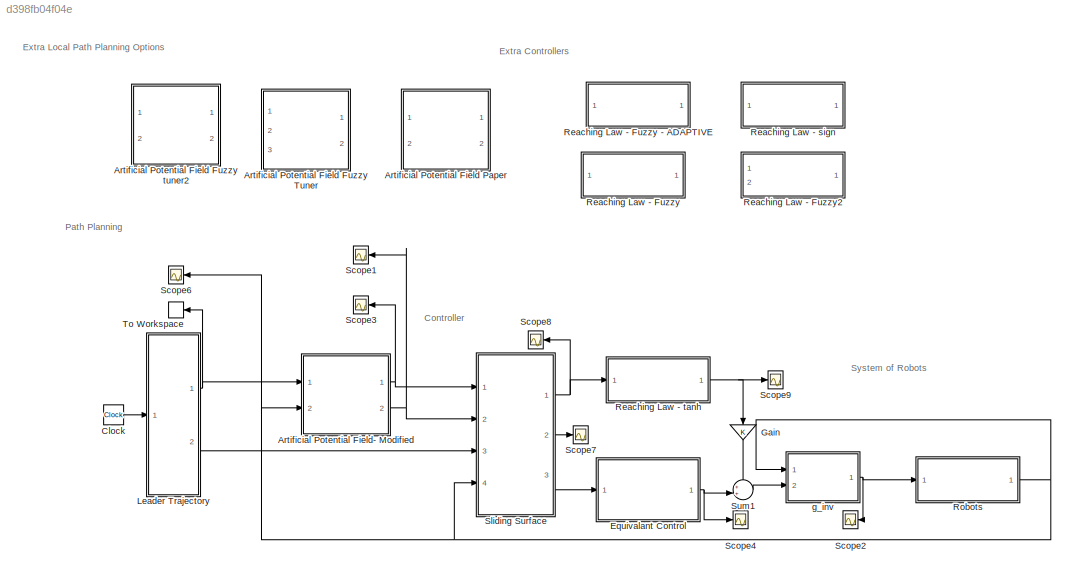
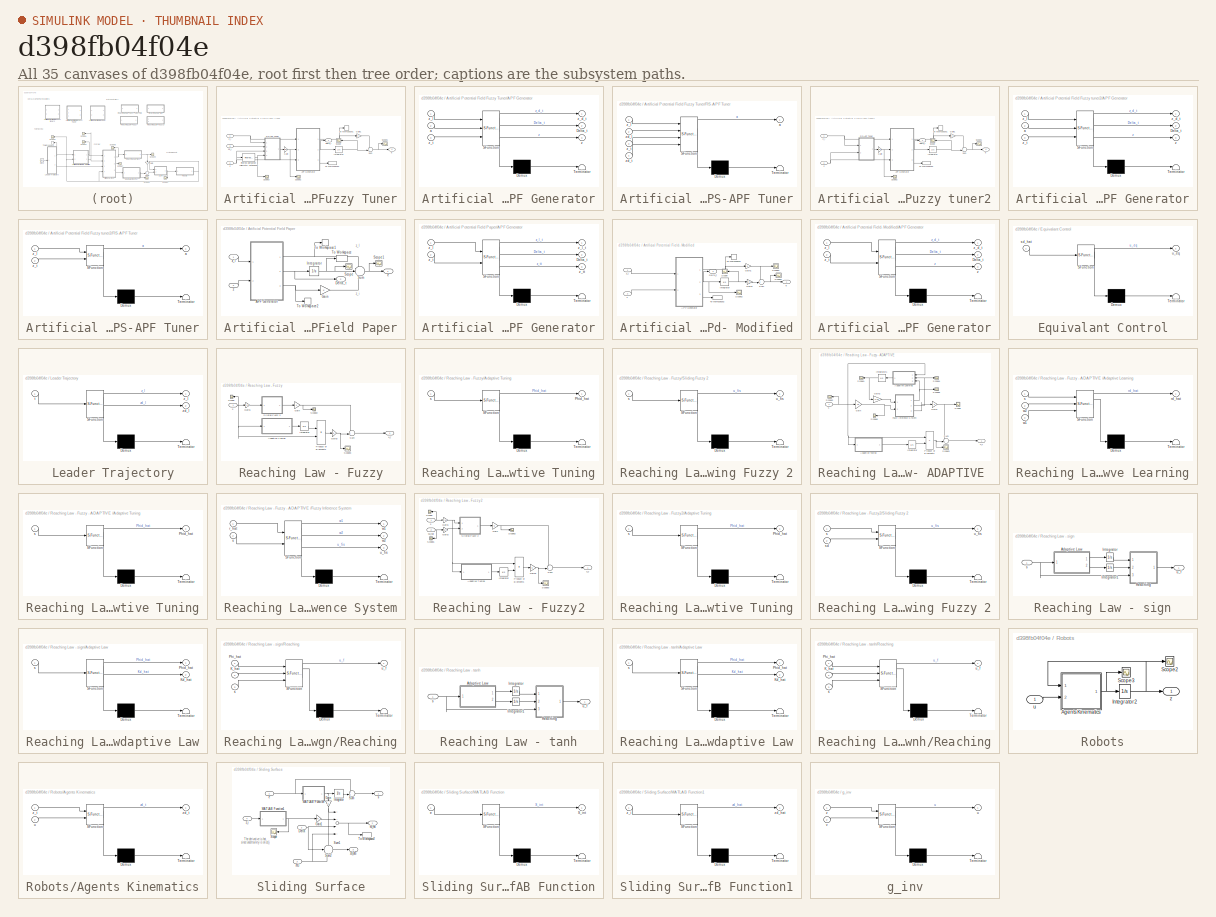
[diagram: thumbnail index - all 35 canvases of the model, root first then tree order]
MODEL slx_d398fb04f04e
KIND model
CONFIG AbsTol = auto
CONFIG EnableMultiTasking = off
CONFIG FixedStep = Ts
CONFIG MaxStep = auto
CONFIG MinStep = auto
CONFIG RelTol = 1e-3
CONFIG SampleTimeConstraint = Unconstrained
CONFIG Solver = FixedStepAuto
CONFIG SolverName = FixedStepAuto
CONFIG StartTime = 0.0
CONFIG StopTime = tf
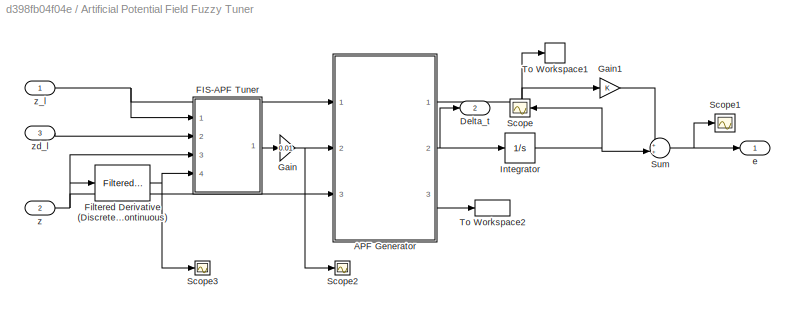
BLOCK [SubSystem] Artificial Potential Field Fuzzy Tuner
  Commented = on
  Ports = [3, 2]
  RequestExecContextInheritance = off
BLOCK [SubSystem] Artificial Potential Field Fuzzy Tuner/APF Generator
  ErrorFcn = Stateflow.Translate.translate
  PermitHierarchicalResolution = ExplicitOnly
  Ports = [3, 3]
  RequestExecContextInheritance = off
  SFBlockType = MATLAB Function
  TreatAsAtomicUnit = on
BLOCK [Demux] Artificial Potential Field Fuzzy Tuner/APF Generator/ Demux 
  Outputs = 1
  Ports = [1, 1]
BLOCK [S-Function] Artificial Potential Field Fuzzy Tuner/APF Generator/ SFunction 
  EnableBusSupport = off
  FunctionName = sf_sfun
  PortCounts = [3 4]
  Ports = [3, 4]
  SFcnIsStateOwnerBlock = off
  SFunctionDeploymentMode = off
  Tag = Stateflow S-Function 19
BLOCK [Terminator] Artificial Potential Field Fuzzy Tuner/APF Generator/ Terminator 
BLOCK [Outport] Artificial Potential Field Fuzzy Tuner/APF Generator/Delta_t
  IconDisplay = Port number
  Port = 2
  VectorParamsAs1DForOutWhenUnconnected = off
BLOCK [Inport] Artificial Potential Field Fuzzy Tuner/APF Generator/a
  IconDisplay = Port number
  Port = 2
BLOCK [Outport] Artificial Potential Field Fuzzy Tuner/APF Generator/z
  IconDisplay = Port number
  Port = 3
  VectorParamsAs1DForOutWhenUnconnected = off
BLOCK [Outport] Artificial Potential Field Fuzzy Tuner/APF Generator/z_d_t
  IconDisplay = Port number
  VectorParamsAs1DForOutWhenUnconnected = off
BLOCK [Inport] Artificial Potential Field Fuzzy Tuner/APF Generator/z_l
  IconDisplay = Port number
BLOCK [Inport] Artificial Potential Field Fuzzy Tuner/APF Generator/z_t
  IconDisplay = Port number
  Port = 3
BLOCK [Outport] Artificial Potential Field Fuzzy Tuner/Delta_t
  IconDisplay = Port number
  Port = 2
  VectorParamsAs1DForOutWhenUnconnected = off
BLOCK [SubSystem] Artificial Potential Field Fuzzy Tuner/FIS-APF Tuner
  ErrorFcn = Stateflow.Translate.translate
  PermitHierarchicalResolution = ExplicitOnly
  Ports = [4, 1]
  RequestExecContextInheritance = off
  SFBlockType = MATLAB Function
  TreatAsAtomicUnit = on
BLOCK [Demux] Artificial Potential Field Fuzzy Tuner/FIS-APF Tuner/ Demux 
  Outputs = 1
  Ports = [1, 1]
BLOCK [S-Function] Artificial Potential Field Fuzzy Tuner/FIS-APF Tuner/ SFunction 
  EnableBusSupport = off
  FunctionName = sf_sfun
  PortCounts = [4 2]
  Ports = [4, 2]
  SFcnIsStateOwnerBlock = off
  SFunctionDeploymentMode = off
  Tag = Stateflow S-Function 20
BLOCK [Terminator] Artificial Potential Field Fuzzy Tuner/FIS-APF Tuner/ Terminator 
BLOCK [Outport] Artificial Potential Field Fuzzy Tuner/FIS-APF Tuner/a
  IconDisplay = Port number
  VectorParamsAs1DForOutWhenUnconnected = off
BLOCK [Inport] Artificial Potential Field Fuzzy Tuner/FIS-APF Tuner/z_l
  IconDisplay = Port number
BLOCK [Inport] Artificial Potential Field Fuzzy Tuner/FIS-APF Tuner/z_t
  IconDisplay = Port number
  Port = 3
BLOCK [Inport] Artificial Potential Field Fuzzy Tuner/FIS-APF Tuner/zd_l
  IconDisplay = Port number
  Port = 2
BLOCK [Inport] Artificial Potential Field Fuzzy Tuner/FIS-APF Tuner/zd_t
  IconDisplay = Port number
  Port = 4
BLOCK [Reference] Artificial Potential Field Fuzzy Tuner/Filtered Derivative (Discrete or Continuous)  REF=eeGeneralControl/Filtered Derivative
(Discrete or Continuous)
  Ports = [1, 1]
  SourceBlock = eeGeneralControl/Filtered Derivative\n(Discrete or Continuous)
  SourceProductBaseCode = PS
  SourceProductName = Simscape Electrical
  SourceType = Filtered Derivative (Discrete or Continuous)
BLOCK [Gain] Artificial Potential Field Fuzzy Tuner/Gain
  Gain = 0.01
  OutDataTypeStr = Inherit: Inherit via internal rule
  ParamDataTypeStr = Inherit: Inherit via internal rule
  SaturateOnIntegerOverflow = off
BLOCK [Gain] Artificial Potential Field Fuzzy Tuner/Gain1
  OutDataTypeStr = Inherit: Inherit via internal rule
  ParamDataTypeStr = Inherit: Inherit via internal rule
  SaturateOnIntegerOverflow = off
BLOCK [Integrator] Artificial Potential Field Fuzzy Tuner/Integrator
  Ports = [1, 1]
BLOCK [Scope] Artificial Potential Field Fuzzy Tuner/Scope
  Floating = off
  NumInputPorts = 1
  Ports = [1]
  ScopeSpecificationString = Simulink.scopes.TimeScopeBlockCfg('CurrentConfiguration', extmgr.ConfigurationSet(extmgr.Configuration('Core','General UI',true),extmgr.Configuration('Core','Source UI',true),extmgr.Configuration('Sources','WiredSimulink',true,'DataLoggingVariableName','ScopeData1'),extmgr.Configuration('Visuals','Time Domain',true,'SerializedDisplays',{struct('MinYLimReal','0.00982','MaxYLimReal','0.0226','YLabel...<+1514ch>
BLOCK [Scope] Artificial Potential Field Fuzzy Tuner/Scope1
  Floating = off
  NumInputPorts = 1
  Ports = [1]
  ScopeSpecificationString = Simulink.scopes.TimeScopeBlockCfg('CurrentConfiguration', extmgr.ConfigurationSet(extmgr.Configuration('Core','General UI',true),extmgr.Configuration('Core','Source UI',true),extmgr.Configuration('Sources','WiredSimulink',true,'DataLoggingVariableName','ScopeData2'),extmgr.Configuration('Visuals','Time Domain',true,'SerializedDisplays',{struct('MinYLimReal','-0.00266','MaxYLimReal','0.02394','YLab...<+1493ch>
BLOCK [Scope] Artificial Potential Field Fuzzy Tuner/Scope2
  Floating = off
  NumInputPorts = 1
  Ports = [1]
  ScopeSpecificationString = Simulink.scopes.TimeScopeBlockCfg('CurrentConfiguration', extmgr.ConfigurationSet(extmgr.Configuration('Core','General UI',true),extmgr.Configuration('Core','Source UI',true),extmgr.Configuration('Sources','WiredSimulink',true,'DataLoggingVariableName','ScopeData3'),extmgr.Configuration('Visuals','Time Domain',true,'SerializedDisplays',{struct('MinYLimReal','-0.001','MaxYLimReal','0.00898','YLabel...<+1667ch>
BLOCK [Scope] Artificial Potential Field Fuzzy Tuner/Scope3
  Floating = off
  NumInputPorts = 1
  Ports = [1]
  ScopeSpecificationString = Simulink.scopes.TimeScopeBlockCfg('CurrentConfiguration', extmgr.ConfigurationSet(extmgr.Configuration('Core','General UI',true),extmgr.Configuration('Core','Source UI',true),extmgr.Configuration('Sources','WiredSimulink',true,'DataLoggingVariableName','ScopeData4'),extmgr.Configuration('Visuals','Time Domain',true,'SerializedDisplays',{struct('MinYLimReal','0.00994','MaxYLimReal','0.01155','YLabe...<+2019ch>
BLOCK [Sum] Artificial Potential Field Fuzzy Tuner/Sum
  IconShape = round
  InputSameDT = off
  Inputs = ++|
  OutDataTypeStr = Inherit: Inherit via internal rule
  Ports = [2, 1]
  SaturateOnIntegerOverflow = off
BLOCK [ToWorkspace] Artificial Potential Field Fuzzy Tuner/To Workspace1
  FixptAsFi = on
  MaxDataPoints = inf
  Ports = [1]
  SampleTime = -1
  SaveFormat = Structure With Time
  VariableName = z_ll
BLOCK [ToWorkspace] Artificial Potential Field Fuzzy Tuner/To Workspace2
  FixptAsFi = on
  MaxDataPoints = inf
  Ports = [1]
  SampleTime = -1
  SaveFormat = Structure With Time
  VariableName = Position
BLOCK [Outport] Artificial Potential Field Fuzzy Tuner/e
  IconDisplay = Port number
  VectorParamsAs1DForOutWhenUnconnected = off
BLOCK [Inport] Artificial Potential Field Fuzzy Tuner/z
  IconDisplay = Port number
  Port = 2
BLOCK [Inport] Artificial Potential Field Fuzzy Tuner/z_l
  IconDisplay = Port number
BLOCK [Inport] Artificial Potential Field Fuzzy Tuner/zd_l
  IconDisplay = Port number
  Port = 3
BLOCK [SubSystem] Artificial Potential Field Fuzzy tuner2
  Commented = on
  Ports = [2, 2]
  RequestExecContextInheritance = off
BLOCK [SubSystem] Artificial Potential Field Fuzzy tuner2/APF Generator
  ErrorFcn = Stateflow.Translate.translate
  PermitHierarchicalResolution = ExplicitOnly
  Ports = [3, 3]
  RequestExecContextInheritance = off
  SFBlockType = MATLAB Function
  TreatAsAtomicUnit = on
BLOCK [Demux] Artificial Potential Field Fuzzy tuner2/APF Generator/ Demux 
  Outputs = 1
  Ports = [1, 1]
BLOCK [S-Function] Artificial Potential Field Fuzzy tuner2/APF Generator/ SFunction 
  EnableBusSupport = off
  FunctionName = sf_sfun
  PortCounts = [3 4]
  Ports = [3, 4]
  SFcnIsStateOwnerBlock = off
  SFunctionDeploymentMode = off
  Tag = Stateflow S-Function 23
BLOCK [Terminator] Artificial Potential Field Fuzzy tuner2/APF Generator/ Terminator 
BLOCK [Outport] Artificial Potential Field Fuzzy tuner2/APF Generator/Delta_t
  IconDisplay = Port number
  Port = 2
  VectorParamsAs1DForOutWhenUnconnected = off
BLOCK [Inport] Artificial Potential Field Fuzzy tuner2/APF Generator/a
  IconDisplay = Port number
  Port = 2
BLOCK [Outport] Artificial Potential Field Fuzzy tuner2/APF Generator/z
  IconDisplay = Port number
  Port = 3
  VectorParamsAs1DForOutWhenUnconnected = off
BLOCK [Outport] Artificial Potential Field Fuzzy tuner2/APF Generator/z_d_t
  IconDisplay = Port number
  VectorParamsAs1DForOutWhenUnconnected = off
BLOCK [Inport] Artificial Potential Field Fuzzy tuner2/APF Generator/z_l
  IconDisplay = Port number
BLOCK [Inport] Artificial Potential Field Fuzzy tuner2/APF Generator/z_t
  IconDisplay = Port number
  Port = 3
BLOCK [Outport] Artificial Potential Field Fuzzy tuner2/Delta_t
  IconDisplay = Port number
  Port = 2
  VectorParamsAs1DForOutWhenUnconnected = off
BLOCK [SubSystem] Artificial Potential Field Fuzzy tuner2/FIS-APF Tuner
  ErrorFcn = Stateflow.Translate.translate
  PermitHierarchicalResolution = ExplicitOnly
  Ports = [2, 1]
  RequestExecContextInheritance = off
  SFBlockType = MATLAB Function
  TreatAsAtomicUnit = on
BLOCK [Demux] Artificial Potential Field Fuzzy tuner2/FIS-APF Tuner/ Demux 
  Outputs = 1
  Ports = [1, 1]
BLOCK [S-Function] Artificial Potential Field Fuzzy tuner2/FIS-APF Tuner/ SFunction 
  EnableBusSupport = off
  FunctionName = sf_sfun
  PortCounts = [2 2]
  Ports = [2, 2]
  SFcnIsStateOwnerBlock = off
  SFunctionDeploymentMode = off
  Tag = Stateflow S-Function 24
BLOCK [Terminator] Artificial Potential Field Fuzzy tuner2/FIS-APF Tuner/ Terminator 
BLOCK [Outport] Artificial Potential Field Fuzzy tuner2/FIS-APF Tuner/a
  IconDisplay = Port number
  VectorParamsAs1DForOutWhenUnconnected = off
BLOCK [Inport] Artificial Potential Field Fuzzy tuner2/FIS-APF Tuner/z_l
  IconDisplay = Port number
BLOCK [Inport] Artificial Potential Field Fuzzy tuner2/FIS-APF Tuner/z_t
  IconDisplay = Port number
  Port = 2
BLOCK [Gain] Artificial Potential Field Fuzzy tuner2/Gain
  Gain = 0.1
  OutDataTypeStr = Inherit: Inherit via internal rule
  ParamDataTypeStr = Inherit: Inherit via internal rule
  SaturateOnIntegerOverflow = off
BLOCK [Gain] Artificial Potential Field Fuzzy tuner2/Gain1
  OutDataTypeStr = Inherit: Inherit via internal rule
  ParamDataTypeStr = Inherit: Inherit via internal rule
  SaturateOnIntegerOverflow = off
BLOCK [Integrator] Artificial Potential Field Fuzzy tuner2/Integrator
  Ports = [1, 1]
BLOCK [Scope] Artificial Potential Field Fuzzy tuner2/Scope
  Floating = off
  NumInputPorts = 1
  Ports = [1]
  ScopeSpecificationString = Simulink.scopes.TimeScopeBlockCfg('CurrentConfiguration', extmgr.ConfigurationSet(extmgr.Configuration('Core','General UI',true),extmgr.Configuration('Core','Source UI',true),extmgr.Configuration('Sources','WiredSimulink',true,'DataLoggingVariableName','ScopeData1'),extmgr.Configuration('Visuals','Time Domain',true,'SerializedDisplays',{struct('MinYLimReal','0.00982','MaxYLimReal','0.0226','YLabel...<+1514ch>
BLOCK [Scope] Artificial Potential Field Fuzzy tuner2/Scope1
  Floating = off
  NumInputPorts = 1
  Ports = [1]
  ScopeSpecificationString = Simulink.scopes.TimeScopeBlockCfg('CurrentConfiguration', extmgr.ConfigurationSet(extmgr.Configuration('Core','General UI',true),extmgr.Configuration('Core','Source UI',true),extmgr.Configuration('Sources','WiredSimulink',true,'DataLoggingVariableName','ScopeData2'),extmgr.Configuration('Visuals','Time Domain',true,'SerializedDisplays',{struct('MinYLimReal','-1.25','MaxYLimReal','1.25','YLabelReal...<+1475ch>
BLOCK [Scope] Artificial Potential Field Fuzzy tuner2/Scope2
  Floating = off
  NumInputPorts = 1
  Ports = [1]
  ScopeSpecificationString = Simulink.scopes.TimeScopeBlockCfg('CurrentConfiguration', extmgr.ConfigurationSet(extmgr.Configuration('Core','General UI',true),extmgr.Configuration('Core','Source UI',true),extmgr.Configuration('Sources','WiredSimulink',true,'DataLoggingVariableName','ScopeData3'),extmgr.Configuration('Visuals','Time Domain',true,'SerializedDisplays',{struct('MinYLimReal','-0.00975','MaxYLimReal','0.08774','YLab...<+1671ch>
BLOCK [Sum] Artificial Potential Field Fuzzy tuner2/Sum
  IconShape = round
  InputSameDT = off
  Inputs = ++|
  OutDataTypeStr = Inherit: Inherit via internal rule
  Ports = [2, 1]
  SaturateOnIntegerOverflow = off
BLOCK [ToWorkspace] Artificial Potential Field Fuzzy tuner2/To Workspace1
  FixptAsFi = on
  MaxDataPoints = inf
  Ports = [1]
  SampleTime = -1
  SaveFormat = Structure With Time
  VariableName = z_ll
BLOCK [ToWorkspace] Artificial Potential Field Fuzzy tuner2/To Workspace2
  FixptAsFi = on
  MaxDataPoints = inf
  Ports = [1]
  SampleTime = -1
  SaveFormat = Structure With Time
  VariableName = Position
BLOCK [Outport] Artificial Potential Field Fuzzy tuner2/e
  IconDisplay = Port number
  VectorParamsAs1DForOutWhenUnconnected = off
BLOCK [Inport] Artificial Potential Field Fuzzy tuner2/z
  IconDisplay = Port number
  Port = 2
BLOCK [Inport] Artificial Potential Field Fuzzy tuner2/z_l
  IconDisplay = Port number
BLOCK [SubSystem] Artificial Potential Field Paper
  Commented = on
  Ports = [2, 2]
  RequestExecContextInheritance = off
BLOCK [SubSystem] Artificial Potential Field Paper/APF Generator
  ErrorFcn = Stateflow.Translate.translate
  PermitHierarchicalResolution = ExplicitOnly
  Ports = [2, 3]
  RequestExecContextInheritance = off
  SFBlockType = MATLAB Function
  TreatAsAtomicUnit = on
BLOCK [Demux] Artificial Potential Field Paper/APF Generator/ Demux 
  Outputs = 1
  Ports = [1, 1]
BLOCK [S-Function] Artificial Potential Field Paper/APF Generator/ SFunction 
  EnableBusSupport = off
  FunctionName = sf_sfun
  PortCounts = [2 4]
  Ports = [2, 4]
  SFcnIsStateOwnerBlock = off
  SFunctionDeploymentMode = off
  Tag = Stateflow S-Function 1
BLOCK [Terminator] Artificial Potential Field Paper/APF Generator/ Terminator 
BLOCK [Outport] Artificial Potential Field Paper/APF Generator/Delta_t
  IconDisplay = Port number
  Port = 2
  VectorParamsAs1DForOutWhenUnconnected = off
BLOCK [Inport] Artificial Potential Field Paper/APF Generator/z_l
  IconDisplay = Port number
BLOCK [Outport] Artificial Potential Field Paper/APF Generator/z_l_t
  IconDisplay = Port number
  VectorParamsAs1DForOutWhenUnconnected = off
BLOCK [Inport] Artificial Potential Field Paper/APF Generator/z_t
  IconDisplay = Port number
  Port = 2
BLOCK [Outport] Artificial Potential Field Paper/APF Generator/z_tt
  IconDisplay = Port number
  Port = 3
  VectorParamsAs1DForOutWhenUnconnected = off
BLOCK [Outport] Artificial Potential Field Paper/Delta_t
  IconDisplay = Port number
  Port = 2
  VectorParamsAs1DForOutWhenUnconnected = off
BLOCK [Gain] Artificial Potential Field Paper/Gain
  OutDataTypeStr = Inherit: Inherit via internal rule
  ParamDataTypeStr = Inherit: Inherit via internal rule
  SaturateOnIntegerOverflow = off
BLOCK [Integrator] Artificial Potential Field Paper/Integrator
  Ports = [1, 1]
BLOCK [Scope] Artificial Potential Field Paper/Scope
  Floating = off
  NumInputPorts = 1
  Ports = [1]
  ScopeSpecificationString = Simulink.scopes.TimeScopeBlockCfg('CurrentConfiguration', extmgr.ConfigurationSet(extmgr.Configuration('Core','General UI',true),extmgr.Configuration('Core','Source UI',true),extmgr.Configuration('Sources','WiredSimulink',true,'DataLoggingVariableName','ScopeData1'),extmgr.Configuration('Visuals','Time Domain',true,'SerializedDisplays',{struct('MinYLimReal','-1.34765','MaxYLimReal','1.13411','YLab...<+1441ch>
BLOCK [Scope] Artificial Potential Field Paper/Scope1
  Floating = off
  NumInputPorts = 1
  Ports = [1]
  ScopeSpecificationString = Simulink.scopes.TimeScopeBlockCfg('CurrentConfiguration', extmgr.ConfigurationSet(extmgr.Configuration('Core','General UI',true),extmgr.Configuration('Core','Source UI',true),extmgr.Configuration('Sources','WiredSimulink',true,'DataLoggingVariableName','ScopeData2'),extmgr.Configuration('Visuals','Time Domain',true,'SerializedDisplays',{struct('MinYLimReal','-1.18476','MaxYLimReal','0.68261','YLab...<+1417ch>
BLOCK [Sum] Artificial Potential Field Paper/Sum
  IconShape = round
  InputSameDT = off
  Inputs = -|+|+
  OutDataTypeStr = Inherit: Inherit via internal rule
  Ports = [3, 1]
  SaturateOnIntegerOverflow = off
BLOCK [ToWorkspace] Artificial Potential Field Paper/To Workspace
  FixptAsFi = on
  MaxDataPoints = inf
  Ports = [1]
  SampleTime = -1
  SaveFormat = Structure With Time
  VariableName = integral
BLOCK [ToWorkspace] Artificial Potential Field Paper/To Workspace1
  FixptAsFi = on
  MaxDataPoints = inf
  Ports = [1]
  SampleTime = -1
  SaveFormat = Structure With Time
  VariableName = z_ll
BLOCK [ToWorkspace] Artificial Potential Field Paper/To Workspace2
  FixptAsFi = on
  MaxDataPoints = inf
  Ports = [1]
  SampleTime = -1
  SaveFormat = Structure With Time
  VariableName = z_ttttt
BLOCK [Outport] Artificial Potential Field Paper/e
  IconDisplay = Port number
  VectorParamsAs1DForOutWhenUnconnected = off
BLOCK [Inport] Artificial Potential Field Paper/z
  IconDisplay = Port number
  Port = 2
BLOCK [Inport] Artificial Potential Field Paper/z_l
  IconDisplay = Port number
BLOCK [SubSystem] Artificial Potential Field- Modified
  Ports = [2, 2]
  RequestExecContextInheritance = off
BLOCK [SubSystem] Artificial Potential Field- Modified/APF Generator
  ErrorFcn = Stateflow.Translate.translate
  PermitHierarchicalResolution = ExplicitOnly
  Ports = [2, 3]
  RequestExecContextInheritance = off
  SFBlockType = MATLAB Function
  TreatAsAtomicUnit = on
BLOCK [Demux] Artificial Potential Field- Modified/APF Generator/ Demux 
  Outputs = 1
  Ports = [1, 1]
BLOCK [S-Function] Artificial Potential Field- Modified/APF Generator/ SFunction 
  EnableBusSupport = off
  FunctionName = sf_sfun
  PortCounts = [2 4]
  Ports = [2, 4]
  SFcnIsStateOwnerBlock = off
  SFunctionDeploymentMode = off
  Tag = Stateflow S-Function 21
BLOCK [Terminator] Artificial Potential Field- Modified/APF Generator/ Terminator 
BLOCK [Outport] Artificial Potential Field- Modified/APF Generator/Delta_t
  IconDisplay = Port number
  Port = 2
  VectorParamsAs1DForOutWhenUnconnected = off
BLOCK [Outport] Artificial Potential Field- Modified/APF Generator/z
  IconDisplay = Port number
  Port = 3
  VectorParamsAs1DForOutWhenUnconnected = off
BLOCK [Outport] Artificial Potential Field- Modified/APF Generator/z_d_t
  IconDisplay = Port number
  VectorParamsAs1DForOutWhenUnconnected = off
BLOCK [Inport] Artificial Potential Field- Modified/APF Generator/z_l
  IconDisplay = Port number
BLOCK [Inport] Artificial Potential Field- Modified/APF Generator/z_t
  IconDisplay = Port number
  Port = 2
BLOCK [Outport] Artificial Potential Field- Modified/Delta_t
  IconDisplay = Port number
  Port = 2
  VectorParamsAs1DForOutWhenUnconnected = off
BLOCK [Gain] Artificial Potential Field- Modified/Gain1
  OutDataTypeStr = Inherit: Inherit via internal rule
  ParamDataTypeStr = Inherit: Inherit via internal rule
  SaturateOnIntegerOverflow = off
BLOCK [Gain] Artificial Potential Field- Modified/Gain2
  Gain = 0
  OutDataTypeStr = Inherit: Inherit via internal rule
  ParamDataTypeStr = Inherit: Inherit via internal rule
  SaturateOnIntegerOverflow = off
BLOCK [Integrator] Artificial Potential Field- Modified/Integrator
  Ports = [1, 1]
BLOCK [Scope] Artificial Potential Field- Modified/Scope
  Floating = off
  NumInputPorts = 1
  Ports = [1]
  ScopeSpecificationString = Simulink.scopes.TimeScopeBlockCfg('CurrentConfiguration', extmgr.ConfigurationSet(extmgr.Configuration('Core','General UI',true),extmgr.Configuration('Core','Source UI',true),extmgr.Configuration('Sources','WiredSimulink',true,'DataLoggingVariableName','ScopeData1'),extmgr.Configuration('Visuals','Time Domain',true,'SerializedDisplays',{struct('MinYLimReal','-16.85103','MaxYLimReal','6.3405','YLab...<+1522ch>
BLOCK [Scope] Artificial Potential Field- Modified/Scope1
  Floating = off
  NumInputPorts = 1
  Ports = [1]
  ScopeSpecificationString = Simulink.scopes.TimeScopeBlockCfg('CurrentConfiguration', extmgr.ConfigurationSet(extmgr.Configuration('Core','General UI',true),extmgr.Configuration('Core','Source UI',true),extmgr.Configuration('Sources','WiredSimulink',true,'DataLoggingVariableName','ScopeData2'),extmgr.Configuration('Visuals','Time Domain',true,'SerializedDisplays',{struct('MinYLimReal','-5.31848','MaxYLimReal','5.03539','YLab...<+1493ch>
BLOCK [Scope] Artificial Potential Field- Modified/Scope2
  Floating = off
  NumInputPorts = 1
  Ports = [1]
  ScopeSpecificationString = Simulink.scopes.TimeScopeBlockCfg('CurrentConfiguration', extmgr.ConfigurationSet(extmgr.Configuration('Core','General UI',true),extmgr.Configuration('Core','Source UI',true),extmgr.Configuration('Sources','WiredSimulink',true,'DataLoggingVariableName','ScopeData1'),extmgr.Configuration('Visuals','Time Domain',true,'SerializedDisplays',{struct('MinYLimReal','-1.73698','MaxYLimReal','1.7273','YLabe...<+1606ch>
BLOCK [Scope] Artificial Potential Field- Modified/Scope3
  Floating = off
  NumInputPorts = 1
  Ports = [1]
  ScopeSpecificationString = Simulink.scopes.TimeScopeBlockCfg('CurrentConfiguration', extmgr.ConfigurationSet(extmgr.Configuration('Core','General UI',true),extmgr.Configuration('Core','Source UI',true),extmgr.Configuration('Sources','WiredSimulink',true,'DataLoggingVariableName','ScopeData2'),extmgr.Configuration('Visuals','Time Domain',true,'SerializedDisplays',{struct('MinYLimReal','-2.35','MaxYLimReal','1.15','YLabelReal...<+1491ch>
BLOCK [Sum] Artificial Potential Field- Modified/Sum
  IconShape = round
  InputSameDT = off
  Inputs = ++|
  OutDataTypeStr = Inherit: Inherit via internal rule
  Ports = [2, 1]
  SaturateOnIntegerOverflow = off
BLOCK [ToWorkspace] Artificial Potential Field- Modified/To Workspace1
  FixptAsFi = on
  MaxDataPoints = inf
  Ports = [1]
  SampleTime = -1
  SaveFormat = Structure With Time
  VariableName = z_ll
BLOCK [ToWorkspace] Artificial Potential Field- Modified/To Workspace2
  FixptAsFi = on
  MaxDataPoints = inf
  Ports = [1]
  SampleTime = -1
  SaveFormat = Structure
  VariableName = Position
BLOCK [Outport] Artificial Potential Field- Modified/e
  IconDisplay = Port number
  VectorParamsAs1DForOutWhenUnconnected = off
BLOCK [Inport] Artificial Potential Field- Modified/z
  IconDisplay = Port number
  Port = 2
BLOCK [Inport] Artificial Potential Field- Modified/z_l
  IconDisplay = Port number
BLOCK [Clock] Clock
  Decimation = 1
BLOCK [SubSystem] Equivalant Control
  ErrorFcn = Stateflow.Translate.translate
  PermitHierarchicalResolution = ExplicitOnly
  Ports = [1, 1]
  RequestExecContextInheritance = off
  SFBlockType = MATLAB Function
  TreatAsAtomicUnit = on
BLOCK [Demux] Equivalant Control/ Demux 
  Outputs = 1
  Ports = [1, 1]
BLOCK [S-Function] Equivalant Control/ SFunction 
  EnableBusSupport = off
  FunctionName = sf_sfun
  PortCounts = [1 2]
  Ports = [1, 2]
  SFcnIsStateOwnerBlock = off
  SFunctionDeploymentMode = off
  Tag = Stateflow S-Function 5
BLOCK [Terminator] Equivalant Control/ Terminator 
BLOCK [Inport] Equivalant Control/sd_hat
  IconDisplay = Port number
BLOCK [Outport] Equivalant Control/u_eq
  IconDisplay = Port number
  VectorParamsAs1DForOutWhenUnconnected = off
BLOCK [Gain] Gain
  OutDataTypeStr = Inherit: Inherit via internal rule
  ParamDataTypeStr = Inherit: Inherit via internal rule
  SaturateOnIntegerOverflow = off
BLOCK [SubSystem] Leader Trajectory
  ErrorFcn = Stateflow.Translate.translate
  PermitHierarchicalResolution = ExplicitOnly
  Ports = [1, 2]
  RequestExecContextInheritance = off
  SFBlockType = MATLAB Function
  TreatAsAtomicUnit = on
BLOCK [Demux] Leader Trajectory/ Demux 
  Outputs = 1
  Ports = [1, 1]
BLOCK [S-Function] Leader Trajectory/ SFunction 
  EnableBusSupport = off
  FunctionName = sf_sfun
  PortCounts = [1 3]
  Ports = [1, 3]
  SFcnIsStateOwnerBlock = off
  SFunctionDeploymentMode = off
  Tag = Stateflow S-Function 3
BLOCK [Terminator] Leader Trajectory/ Terminator 
BLOCK [Inport] Leader Trajectory/t
  IconDisplay = Port number
BLOCK [Outport] Leader Trajectory/z_l
  IconDisplay = Port number
  VectorParamsAs1DForOutWhenUnconnected = off
BLOCK [Outport] Leader Trajectory/zd_l
  IconDisplay = Port number
  Port = 2
  VectorParamsAs1DForOutWhenUnconnected = off
BLOCK [SubSystem] Reaching Law - Fuzzy
  Commented = on
  Ports = [1, 1]
  RequestExecContextInheritance = off
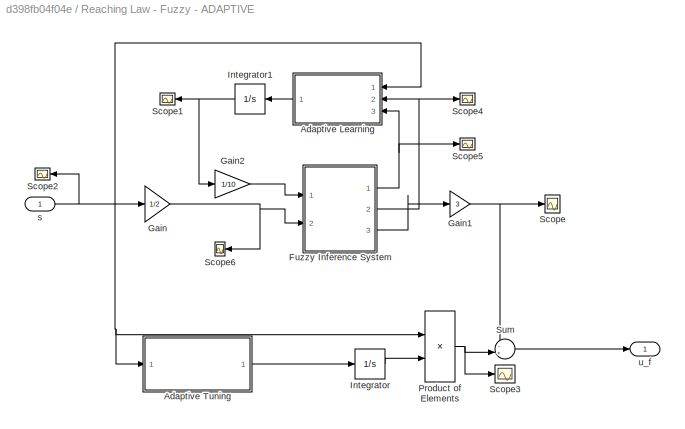
BLOCK [SubSystem] Reaching Law - Fuzzy - ADAPTIVE 
  Commented = on
  Ports = [1, 1]
  RequestExecContextInheritance = off
BLOCK [SubSystem] Reaching Law - Fuzzy - ADAPTIVE /Adaptive Learning
  ErrorFcn = Stateflow.Translate.translate
  PermitHierarchicalResolution = ExplicitOnly
  Ports = [3, 1]
  RequestExecContextInheritance = off
  SFBlockType = MATLAB Function
  TreatAsAtomicUnit = on
BLOCK [Demux] Reaching Law - Fuzzy - ADAPTIVE /Adaptive Learning/ Demux 
  Outputs = 1
  Ports = [1, 1]
BLOCK [S-Function] Reaching Law - Fuzzy - ADAPTIVE /Adaptive Learning/ SFunction 
  EnableBusSupport = off
  FunctionName = sf_sfun
  PortCounts = [3 2]
  Ports = [3, 2]
  SFcnIsStateOwnerBlock = off
  SFunctionDeploymentMode = off
  Tag = Stateflow S-Function 11
BLOCK [Terminator] Reaching Law - Fuzzy - ADAPTIVE /Adaptive Learning/ Terminator 
BLOCK [Outport] Reaching Law - Fuzzy - ADAPTIVE /Adaptive Learning/rd_hat
  IconDisplay = Port number
  VectorParamsAs1DForOutWhenUnconnected = off
BLOCK [Inport] Reaching Law - Fuzzy - ADAPTIVE /Adaptive Learning/s
  IconDisplay = Port number
BLOCK [Inport] Reaching Law - Fuzzy - ADAPTIVE /Adaptive Learning/w1
  IconDisplay = Port number
  Port = 3
BLOCK [Inport] Reaching Law - Fuzzy - ADAPTIVE /Adaptive Learning/w2
  IconDisplay = Port number
  Port = 2
BLOCK [SubSystem] Reaching Law - Fuzzy - ADAPTIVE /Adaptive Tuning
  ErrorFcn = Stateflow.Translate.translate
  PermitHierarchicalResolution = ExplicitOnly
  Ports = [1, 1]
  RequestExecContextInheritance = off
  SFBlockType = MATLAB Function
  TreatAsAtomicUnit = on
BLOCK [Demux] Reaching Law - Fuzzy - ADAPTIVE /Adaptive Tuning/ Demux 
  Outputs = 1
  Ports = [1, 1]
BLOCK [S-Function] Reaching Law - Fuzzy - ADAPTIVE /Adaptive Tuning/ SFunction 
  EnableBusSupport = off
  FunctionName = sf_sfun
  PortCounts = [1 2]
  Ports = [1, 2]
  SFcnIsStateOwnerBlock = off
  SFunctionDeploymentMode = off
  Tag = Stateflow S-Function 10
BLOCK [Terminator] Reaching Law - Fuzzy - ADAPTIVE /Adaptive Tuning/ Terminator 
BLOCK [Outport] Reaching Law - Fuzzy - ADAPTIVE /Adaptive Tuning/Phid_hat
  IconDisplay = Port number
  VectorParamsAs1DForOutWhenUnconnected = off
BLOCK [Inport] Reaching Law - Fuzzy - ADAPTIVE /Adaptive Tuning/s
  IconDisplay = Port number
BLOCK [SubSystem] Reaching Law - Fuzzy - ADAPTIVE /Fuzzy Inference System
  ErrorFcn = Stateflow.Translate.translate
  PermitHierarchicalResolution = ExplicitOnly
  Ports = [2, 3]
  RequestExecContextInheritance = off
  SFBlockType = MATLAB Function
  TreatAsAtomicUnit = on
BLOCK [Demux] Reaching Law - Fuzzy - ADAPTIVE /Fuzzy Inference System/ Demux 
  Outputs = 1
  Ports = [1, 1]
BLOCK [S-Function] Reaching Law - Fuzzy - ADAPTIVE /Fuzzy Inference System/ SFunction 
  EnableBusSupport = off
  FunctionName = sf_sfun
  PortCounts = [2 4]
  Ports = [2, 4]
  SFcnIsStateOwnerBlock = off
  SFunctionDeploymentMode = off
  Tag = Stateflow S-Function 12
BLOCK [Terminator] Reaching Law - Fuzzy - ADAPTIVE /Fuzzy Inference System/ Terminator 
BLOCK [Inport] Reaching Law - Fuzzy - ADAPTIVE /Fuzzy Inference System/r_hat
  IconDisplay = Port number
BLOCK [Inport] Reaching Law - Fuzzy - ADAPTIVE /Fuzzy Inference System/s
  IconDisplay = Port number
  Port = 2
BLOCK [Outport] Reaching Law - Fuzzy - ADAPTIVE /Fuzzy Inference System/u_fis
  IconDisplay = Port number
  Port = 3
  VectorParamsAs1DForOutWhenUnconnected = off
BLOCK [Outport] Reaching Law - Fuzzy - ADAPTIVE /Fuzzy Inference System/w1
  IconDisplay = Port number
  VectorParamsAs1DForOutWhenUnconnected = off
BLOCK [Outport] Reaching Law - Fuzzy - ADAPTIVE /Fuzzy Inference System/w2
  IconDisplay = Port number
  Port = 2
  VectorParamsAs1DForOutWhenUnconnected = off
BLOCK [Gain] Reaching Law - Fuzzy - ADAPTIVE /Gain
  Gain = 1/2
  OutDataTypeStr = Inherit: Inherit via internal rule
  ParamDataTypeStr = Inherit: Inherit via internal rule
  SaturateOnIntegerOverflow = off
BLOCK [Gain] Reaching Law - Fuzzy - ADAPTIVE /Gain1
  Gain = 3
  OutDataTypeStr = Inherit: Inherit via internal rule
  ParamDataTypeStr = Inherit: Inherit via internal rule
  SaturateOnIntegerOverflow = off
BLOCK [Gain] Reaching Law - Fuzzy - ADAPTIVE /Gain2
  Gain = 1/10
  OutDataTypeStr = Inherit: Inherit via internal rule
  ParamDataTypeStr = Inherit: Inherit via internal rule
  SaturateOnIntegerOverflow = off
BLOCK [Integrator] Reaching Law - Fuzzy - ADAPTIVE /Integrator
  Ports = [1, 1]
BLOCK [Integrator] Reaching Law - Fuzzy - ADAPTIVE /Integrator1
  Ports = [1, 1]
BLOCK [Product] Reaching Law - Fuzzy - ADAPTIVE /Product of Elements
  InputSameDT = off
  OutDataTypeStr = Inherit: Inherit via internal rule
  Ports = [2, 1]
  RndMeth = Floor
  SaturateOnIntegerOverflow = off
BLOCK [Scope] Reaching Law - Fuzzy - ADAPTIVE /Scope
  Floating = off
  NumInputPorts = 1
  Ports = [1]
  ScopeSpecificationString = Simulink.scopes.TimeScopeBlockCfg('CurrentConfiguration', extmgr.ConfigurationSet(extmgr.Configuration('Core','General UI',true),extmgr.Configuration('Core','Source UI',true),extmgr.Configuration('Sources','WiredSimulink',true,'DataLoggingVariableName','ScopeData1'),extmgr.Configuration('Visuals','Time Domain',true,'SerializedDisplays',{struct('MinYLimReal','-0.43836','MaxYLimReal','0.23736','YLab...<+1450ch>
BLOCK [Scope] Reaching Law - Fuzzy - ADAPTIVE /Scope1
  Floating = off
  NumInputPorts = 1
  Ports = [1]
  ScopeSpecificationString = Simulink.scopes.TimeScopeBlockCfg('CurrentConfiguration', extmgr.ConfigurationSet(extmgr.Configuration('Core','General UI',true),extmgr.Configuration('Core','Source UI',true),extmgr.Configuration('Sources','WiredSimulink',true,'DataLoggingVariableName','ScopeData2'),extmgr.Configuration('Visuals','Time Domain',true,'SerializedDisplays',{struct('MinYLimReal','0.85131','MaxYLimReal','2.33824','YLabe...<+1443ch>
BLOCK [Scope] Reaching Law - Fuzzy - ADAPTIVE /Scope2
  Floating = off
  NumInputPorts = 1
  Ports = [1]
  ScopeSpecificationString = Simulink.scopes.TimeScopeBlockCfg('CurrentConfiguration', extmgr.ConfigurationSet(extmgr.Configuration('Core','General UI',true),extmgr.Configuration('Core','Source UI',true),extmgr.Configuration('Sources','WiredSimulink',true,'DataLoggingVariableName','ScopeData3'),extmgr.Configuration('Visuals','Time Domain',true,'SerializedDisplays',{struct('MinYLimReal','-1.20682','MaxYLimReal','0.8812','YLabe...<+1432ch>
BLOCK [Scope] Reaching Law - Fuzzy - ADAPTIVE /Scope3
  Floating = off
  NumInputPorts = 1
  Ports = [1]
  ScopeSpecificationString = Simulink.scopes.TimeScopeBlockCfg('CurrentConfiguration', extmgr.ConfigurationSet(extmgr.Configuration('Core','General UI',true),extmgr.Configuration('Core','Source UI',true),extmgr.Configuration('Sources','WiredSimulink',true,'DataLoggingVariableName','ScopeData4'),extmgr.Configuration('Visuals','Time Domain',true,'SerializedDisplays',{struct('MinYLimReal','-0.00015','MaxYLimReal','0.00023','YLab...<+1477ch>
BLOCK [Scope] Reaching Law - Fuzzy - ADAPTIVE /Scope4
  Floating = off
  NumInputPorts = 1
  Ports = [1]
  ScopeSpecificationString = Simulink.scopes.TimeScopeBlockCfg('CurrentConfiguration', extmgr.ConfigurationSet(extmgr.Configuration('Core','General UI',true),extmgr.Configuration('Core','Source UI',true),extmgr.Configuration('Sources','WiredSimulink',true,'DataLoggingVariableName','ScopeData5'),extmgr.Configuration('Visuals','Time Domain',true,'SerializedDisplays',{struct('MinYLimReal','-0.06238','MaxYLimReal','0.56139','YLab...<+1531ch>
BLOCK [Scope] Reaching Law - Fuzzy - ADAPTIVE /Scope5
  Floating = off
  NumInputPorts = 1
  Ports = [1]
  ScopeSpecificationString = Simulink.scopes.TimeScopeBlockCfg('CurrentConfiguration', extmgr.ConfigurationSet(extmgr.Configuration('Core','General UI',true),extmgr.Configuration('Core','Source UI',true),extmgr.Configuration('Sources','WiredSimulink',true,'DataLoggingVariableName','ScopeData6'),extmgr.Configuration('Visuals','Time Domain',true,'SerializedDisplays',{struct('MinYLimReal','-0.04203','MaxYLimReal','0.37823','YLab...<+1531ch>
BLOCK [Scope] Reaching Law - Fuzzy - ADAPTIVE /Scope6
  Floating = off
  NumInputPorts = 1
  Ports = [1]
  ScopeSpecificationString = Simulink.scopes.TimeScopeBlockCfg('CurrentConfiguration', extmgr.ConfigurationSet(extmgr.Configuration('Core','General UI',true),extmgr.Configuration('Core','Source UI',true),extmgr.Configuration('Sources','WiredSimulink',true,'DataLoggingVariableName','ScopeData7'),extmgr.Configuration('Visuals','Time Domain',true,'SerializedDisplays',{struct('MinYLimReal','-0.60341','MaxYLimReal','0.4406','YLabe...<+1415ch>
BLOCK [Sum] Reaching Law - Fuzzy - ADAPTIVE /Sum
  IconShape = round
  InputSameDT = off
  Inputs = -+|
  OutDataTypeStr = Inherit: Inherit via internal rule
  Ports = [2, 1]
  SaturateOnIntegerOverflow = off
BLOCK [Inport] Reaching Law - Fuzzy - ADAPTIVE /s
  IconDisplay = Port number
BLOCK [Outport] Reaching Law - Fuzzy - ADAPTIVE /u_f
  IconDisplay = Port number
  VectorParamsAs1DForOutWhenUnconnected = off
BLOCK [SubSystem] Reaching Law - Fuzzy/Adaptive Tuning
  ErrorFcn = Stateflow.Translate.translate
  PermitHierarchicalResolution = ExplicitOnly
  Ports = [1, 1]
  RequestExecContextInheritance = off
  SFBlockType = MATLAB Function
  TreatAsAtomicUnit = on
BLOCK [Demux] Reaching Law - Fuzzy/Adaptive Tuning/ Demux 
  Outputs = 1
  Ports = [1, 1]
BLOCK [S-Function] Reaching Law - Fuzzy/Adaptive Tuning/ SFunction 
  EnableBusSupport = off
  FunctionName = sf_sfun
  PortCounts = [1 2]
  Ports = [1, 2]
  SFcnIsStateOwnerBlock = off
  SFunctionDeploymentMode = off
  Tag = Stateflow S-Function 14
BLOCK [Terminator] Reaching Law - Fuzzy/Adaptive Tuning/ Terminator 
BLOCK [Outport] Reaching Law - Fuzzy/Adaptive Tuning/Phid_hat
  IconDisplay = Port number
  VectorParamsAs1DForOutWhenUnconnected = off
BLOCK [Inport] Reaching Law - Fuzzy/Adaptive Tuning/s
  IconDisplay = Port number
BLOCK [Gain] Reaching Law - Fuzzy/Gain
  Gain = 4
  OutDataTypeStr = Inherit: Inherit via internal rule
  ParamDataTypeStr = Inherit: Inherit via internal rule
  SaturateOnIntegerOverflow = off
BLOCK [Gain] Reaching Law - Fuzzy/Gain1
  Gain = 0.25
  OutDataTypeStr = Inherit: Inherit via internal rule
  ParamDataTypeStr = Inherit: Inherit via internal rule
  SaturateOnIntegerOverflow = off
BLOCK [Gain] Reaching Law - Fuzzy/Gain3
  OutDataTypeStr = Inherit: Inherit via internal rule
  ParamDataTypeStr = Inherit: Inherit via internal rule
  SaturateOnIntegerOverflow = off
BLOCK [Integrator] Reaching Law - Fuzzy/Integrator
  InitialCondition = zeros(n)
  Ports = [1, 1]
BLOCK [Product] Reaching Law - Fuzzy/Product of Elements
  InputSameDT = off
  Multiplication = Matrix(*)
  OutDataTypeStr = Inherit: Inherit via internal rule
  Ports = [2, 1]
  RndMeth = Floor
  SaturateOnIntegerOverflow = off
BLOCK [Scope] Reaching Law - Fuzzy/Scope
  Floating = off
  NumInputPorts = 1
  Ports = [1]
  ScopeSpecificationString = Simulink.scopes.TimeScopeBlockCfg('CurrentConfiguration', extmgr.ConfigurationSet(extmgr.Configuration('Core','General UI',true),extmgr.Configuration('Core','Source UI',true),extmgr.Configuration('Sources','WiredSimulink',true,'DataLoggingVariableName','ScopeData8'),extmgr.Configuration('Visuals','Time Domain',true,'SerializedDisplays',{struct('MinYLimReal','-0.01867','MaxYLimReal','0.15407','YLab...<+1819ch>
BLOCK [Scope] Reaching Law - Fuzzy/Scope2
  Floating = off
  NumInputPorts = 1
  Ports = [1]
  ScopeSpecificationString = Simulink.scopes.TimeScopeBlockCfg('CurrentConfiguration', extmgr.ConfigurationSet(extmgr.Configuration('Core','General UI',true),extmgr.Configuration('Core','Source UI',true),extmgr.Configuration('Sources','WiredSimulink',true,'DataLoggingVariableName','ScopeData10'),extmgr.Configuration('Visuals','Time Domain',true,'SerializedDisplays',{struct('MinYLimReal','-0.84167','MaxYLimReal','0.84167','YLa...<+1502ch>
BLOCK [Scope] Reaching Law - Fuzzy/Scope3
  Floating = off
  NumInputPorts = 1
  Ports = [1]
  ScopeSpecificationString = Simulink.scopes.TimeScopeBlockCfg('CurrentConfiguration', extmgr.ConfigurationSet(extmgr.Configuration('Core','General UI',true),extmgr.Configuration('Core','Source UI',true),extmgr.Configuration('Sources','WiredSimulink',true,'DataLoggingVariableName','ScopeData11'),extmgr.Configuration('Visuals','Time Domain',true,'SerializedDisplays',{struct('MinYLimReal','-0.00138','MaxYLimReal','0.00137','YLa...<+1462ch>
BLOCK [SubSystem] Reaching Law - Fuzzy/Sliding Fuzzy 2
  ErrorFcn = Stateflow.Translate.translate
  PermitHierarchicalResolution = ExplicitOnly
  Ports = [1, 1]
  RequestExecContextInheritance = off
  SFBlockType = MATLAB Function
  TreatAsAtomicUnit = on
BLOCK [Demux] Reaching Law - Fuzzy/Sliding Fuzzy 2/ Demux 
  Outputs = 1
  Ports = [1, 1]
BLOCK [S-Function] Reaching Law - Fuzzy/Sliding Fuzzy 2/ SFunction 
  EnableBusSupport = off
  FunctionName = sf_sfun
  PortCounts = [1 2]
  Ports = [1, 2]
  SFcnIsStateOwnerBlock = off
  SFunctionDeploymentMode = off
  Tag = Stateflow S-Function 13
BLOCK [Terminator] Reaching Law - Fuzzy/Sliding Fuzzy 2/ Terminator 
BLOCK [Inport] Reaching Law - Fuzzy/Sliding Fuzzy 2/s
  IconDisplay = Port number
BLOCK [Outport] Reaching Law - Fuzzy/Sliding Fuzzy 2/u_fis
  IconDisplay = Port number
  VectorParamsAs1DForOutWhenUnconnected = off
BLOCK [Sum] Reaching Law - Fuzzy/Sum
  IconShape = round
  InputSameDT = off
  Inputs = -+|
  OutDataTypeStr = Inherit: Inherit via internal rule
  Ports = [2, 1]
  SaturateOnIntegerOverflow = off
BLOCK [Inport] Reaching Law - Fuzzy/s
  IconDisplay = Port number
BLOCK [Outport] Reaching Law - Fuzzy/u_f
  IconDisplay = Port number
  VectorParamsAs1DForOutWhenUnconnected = off
BLOCK [SubSystem] Reaching Law - Fuzzy2
  Commented = on
  Ports = [2, 1]
  RequestExecContextInheritance = off
BLOCK [SubSystem] Reaching Law - Fuzzy2/Adaptive Tuning
  ErrorFcn = Stateflow.Translate.translate
  PermitHierarchicalResolution = ExplicitOnly
  Ports = [1, 1]
  RequestExecContextInheritance = off
  SFBlockType = MATLAB Function
  TreatAsAtomicUnit = on
BLOCK [Demux] Reaching Law - Fuzzy2/Adaptive Tuning/ Demux 
  Outputs = 1
  Ports = [1, 1]
BLOCK [S-Function] Reaching Law - Fuzzy2/Adaptive Tuning/ SFunction 
  EnableBusSupport = off
  FunctionName = sf_sfun
  PortCounts = [1 2]
  Ports = [1, 2]
  SFcnIsStateOwnerBlock = off
  SFunctionDeploymentMode = off
  Tag = Stateflow S-Function 15
BLOCK [Terminator] Reaching Law - Fuzzy2/Adaptive Tuning/ Terminator 
BLOCK [Outport] Reaching Law - Fuzzy2/Adaptive Tuning/Phid_hat
  IconDisplay = Port number
  VectorParamsAs1DForOutWhenUnconnected = off
BLOCK [Inport] Reaching Law - Fuzzy2/Adaptive Tuning/s
  IconDisplay = Port number
BLOCK [Gain] Reaching Law - Fuzzy2/Gain
  OutDataTypeStr = Inherit: Inherit via internal rule
  ParamDataTypeStr = Inherit: Inherit via internal rule
  SaturateOnIntegerOverflow = off
BLOCK [Gain] Reaching Law - Fuzzy2/Gain1
  Gain = 1/10
  OutDataTypeStr = Inherit: Inherit via internal rule
  ParamDataTypeStr = Inherit: Inherit via internal rule
  SaturateOnIntegerOverflow = off
BLOCK [Gain] Reaching Law - Fuzzy2/Gain2
  Gain = 1/2
  OutDataTypeStr = Inherit: Inherit via internal rule
  ParamDataTypeStr = Inherit: Inherit via internal rule
  SaturateOnIntegerOverflow = off
BLOCK [Gain] Reaching Law - Fuzzy2/Gain3
  OutDataTypeStr = Inherit: Inherit via internal rule
  ParamDataTypeStr = Inherit: Inherit via internal rule
  SaturateOnIntegerOverflow = off
BLOCK [Integrator] Reaching Law - Fuzzy2/Integrator
  Ports = [1, 1]
BLOCK [Product] Reaching Law - Fuzzy2/Product of Elements
  InputSameDT = off
  OutDataTypeStr = Inherit: Inherit via internal rule
  Ports = [2, 1]
  RndMeth = Floor
  SaturateOnIntegerOverflow = off
BLOCK [Scope] Reaching Law - Fuzzy2/Scope
  Floating = off
  NumInputPorts = 1
  Ports = [1]
  ScopeSpecificationString = Simulink.scopes.TimeScopeBlockCfg('CurrentConfiguration', extmgr.ConfigurationSet(extmgr.Configuration('Core','General UI',true),extmgr.Configuration('Core','Source UI',true),extmgr.Configuration('Sources','WiredSimulink',true,'DataLoggingVariableName','ScopeData8'),extmgr.Configuration('Visuals','Time Domain',true,'SerializedDisplays',{struct('MinYLimReal','-26.74265','MaxYLimReal','6.31458','YLa...<+1438ch>
BLOCK [Scope] Reaching Law - Fuzzy2/Scope1
  Floating = off
  NumInputPorts = 1
  Ports = [1]
  ScopeSpecificationString = Simulink.scopes.TimeScopeBlockCfg('CurrentConfiguration', extmgr.ConfigurationSet(extmgr.Configuration('Core','General UI',true),extmgr.Configuration('Core','Source UI',true),extmgr.Configuration('Sources','WiredSimulink',true,'DataLoggingVariableName','ScopeData1'),extmgr.Configuration('Visuals','Time Domain',true,'SerializedDisplays',{struct('MinYLimReal','-3.6886','MaxYLimReal','3.76037','YLabe...<+1452ch>
BLOCK [Scope] Reaching Law - Fuzzy2/Scope2
  Floating = off
  NumInputPorts = 1
  Ports = [1]
  ScopeSpecificationString = Simulink.scopes.TimeScopeBlockCfg('CurrentConfiguration', extmgr.ConfigurationSet(extmgr.Configuration('Core','General UI',true),extmgr.Configuration('Core','Source UI',true),extmgr.Configuration('Sources','WiredSimulink',true,'DataLoggingVariableName','ScopeData10'),extmgr.Configuration('Visuals','Time Domain',true,'SerializedDisplays',{struct('MinYLimReal','-0.74752','MaxYLimReal','0.84379','YLa...<+1447ch>
BLOCK [Scope] Reaching Law - Fuzzy2/Scope3
  Floating = off
  NumInputPorts = 1
  Ports = [1]
  ScopeSpecificationString = Simulink.scopes.TimeScopeBlockCfg('CurrentConfiguration', extmgr.ConfigurationSet(extmgr.Configuration('Core','General UI',true),extmgr.Configuration('Core','Source UI',true),extmgr.Configuration('Sources','WiredSimulink',true,'DataLoggingVariableName','ScopeData11'),extmgr.Configuration('Visuals','Time Domain',true,'SerializedDisplays',{struct('MinYLimReal','-0.00015','MaxYLimReal','0.00012','YLa...<+1422ch>
BLOCK [SubSystem] Reaching Law - Fuzzy2/Sliding Fuzzy 2
  ErrorFcn = Stateflow.Translate.translate
  PermitHierarchicalResolution = ExplicitOnly
  Ports = [2, 1]
  RequestExecContextInheritance = off
  SFBlockType = MATLAB Function
  TreatAsAtomicUnit = on
BLOCK [Demux] Reaching Law - Fuzzy2/Sliding Fuzzy 2/ Demux 
  Outputs = 1
  Ports = [1, 1]
BLOCK [S-Function] Reaching Law - Fuzzy2/Sliding Fuzzy 2/ SFunction 
  EnableBusSupport = off
  FunctionName = sf_sfun
  PortCounts = [2 2]
  Ports = [2, 2]
  SFcnIsStateOwnerBlock = off
  SFunctionDeploymentMode = off
  Tag = Stateflow S-Function 16
BLOCK [Terminator] Reaching Law - Fuzzy2/Sliding Fuzzy 2/ Terminator 
BLOCK [Inport] Reaching Law - Fuzzy2/Sliding Fuzzy 2/s
  IconDisplay = Port number
BLOCK [Inport] Reaching Law - Fuzzy2/Sliding Fuzzy 2/sd
  IconDisplay = Port number
  Port = 2
BLOCK [Outport] Reaching Law - Fuzzy2/Sliding Fuzzy 2/u_fis
  IconDisplay = Port number
  VectorParamsAs1DForOutWhenUnconnected = off
BLOCK [Sum] Reaching Law - Fuzzy2/Sum
  IconShape = round
  InputSameDT = off
  Inputs = -+|
  OutDataTypeStr = Inherit: Inherit via internal rule
  Ports = [2, 1]
  SaturateOnIntegerOverflow = off
BLOCK [Inport] Reaching Law - Fuzzy2/s
  IconDisplay = Port number
BLOCK [Inport] Reaching Law - Fuzzy2/sd_hat
  IconDisplay = Port number
  Port = 2
BLOCK [Outport] Reaching Law - Fuzzy2/u_f
  IconDisplay = Port number
  VectorParamsAs1DForOutWhenUnconnected = off
BLOCK [SubSystem] Reaching Law - sign
  Commented = on
  Ports = [1, 1]
  RequestExecContextInheritance = off
BLOCK [SubSystem] Reaching Law - sign/Adaptive Law
  ErrorFcn = Stateflow.Translate.translate
  PermitHierarchicalResolution = ExplicitOnly
  Ports = [1, 2]
  RequestExecContextInheritance = off
  SFBlockType = MATLAB Function
  TreatAsAtomicUnit = on
BLOCK [Demux] Reaching Law - sign/Adaptive Law/ Demux 
  Outputs = 1
  Ports = [1, 1]
BLOCK [S-Function] Reaching Law - sign/Adaptive Law/ SFunction 
  EnableBusSupport = off
  FunctionName = sf_sfun
  PortCounts = [1 3]
  Ports = [1, 3]
  SFcnIsStateOwnerBlock = off
  SFunctionDeploymentMode = off
  Tag = Stateflow S-Function 17
BLOCK [Terminator] Reaching Law - sign/Adaptive Law/ Terminator 
BLOCK [Outport] Reaching Law - sign/Adaptive Law/Kd_hat
  IconDisplay = Port number
  Port = 2
  VectorParamsAs1DForOutWhenUnconnected = off
BLOCK [Outport] Reaching Law - sign/Adaptive Law/Phid_hat
  IconDisplay = Port number
  VectorParamsAs1DForOutWhenUnconnected = off
BLOCK [Inport] Reaching Law - sign/Adaptive Law/s
  IconDisplay = Port number
BLOCK [Integrator] Reaching Law - sign/Integrator
  Ports = [1, 1]
BLOCK [Integrator] Reaching Law - sign/Integrator1
  Ports = [1, 1]
BLOCK [SubSystem] Reaching Law - sign/Reaching
  ErrorFcn = Stateflow.Translate.translate
  PermitHierarchicalResolution = ExplicitOnly
  Ports = [3, 1]
  RequestExecContextInheritance = off
  SFBlockType = MATLAB Function
  TreatAsAtomicUnit = on
BLOCK [Demux] Reaching Law - sign/Reaching/ Demux 
  Outputs = 1
  Ports = [1, 1]
BLOCK [S-Function] Reaching Law - sign/Reaching/ SFunction 
  EnableBusSupport = off
  FunctionName = sf_sfun
  PortCounts = [3 2]
  Ports = [3, 2]
  SFcnIsStateOwnerBlock = off
  SFunctionDeploymentMode = off
  Tag = Stateflow S-Function 18
BLOCK [Terminator] Reaching Law - sign/Reaching/ Terminator 
BLOCK [Inport] Reaching Law - sign/Reaching/K_hat
  IconDisplay = Port number
  Port = 2
BLOCK [Inport] Reaching Law - sign/Reaching/Phi_hat
  IconDisplay = Port number
BLOCK [Inport] Reaching Law - sign/Reaching/s
  IconDisplay = Port number
  Port = 3
BLOCK [Outport] Reaching Law - sign/Reaching/u_f
  IconDisplay = Port number
  VectorParamsAs1DForOutWhenUnconnected = off
BLOCK [Inport] Reaching Law - sign/s
  IconDisplay = Port number
BLOCK [Outport] Reaching Law - sign/u_f
  IconDisplay = Port number
  VectorParamsAs1DForOutWhenUnconnected = off
BLOCK [SubSystem] Reaching Law - tanh
  Ports = [1, 1]
  RequestExecContextInheritance = off
BLOCK [SubSystem] Reaching Law - tanh/Adaptive Law
  ErrorFcn = Stateflow.Translate.translate
  PermitHierarchicalResolution = ExplicitOnly
  Ports = [1, 2]
  RequestExecContextInheritance = off
  SFBlockType = MATLAB Function
  TreatAsAtomicUnit = on
BLOCK [Demux] Reaching Law - tanh/Adaptive Law/ Demux 
  Outputs = 1
  Ports = [1, 1]
BLOCK [S-Function] Reaching Law - tanh/Adaptive Law/ SFunction 
  EnableBusSupport = off
  FunctionName = sf_sfun
  PortCounts = [1 3]
  Ports = [1, 3]
  SFcnIsStateOwnerBlock = off
  SFunctionDeploymentMode = off
  Tag = Stateflow S-Function 8
BLOCK [Terminator] Reaching Law - tanh/Adaptive Law/ Terminator 
BLOCK [Outport] Reaching Law - tanh/Adaptive Law/Kd_hat
  IconDisplay = Port number
  Port = 2
  VectorParamsAs1DForOutWhenUnconnected = off
BLOCK [Outport] Reaching Law - tanh/Adaptive Law/Phid_hat
  IconDisplay = Port number
  VectorParamsAs1DForOutWhenUnconnected = off
BLOCK [Inport] Reaching Law - tanh/Adaptive Law/s
  IconDisplay = Port number
BLOCK [Integrator] Reaching Law - tanh/Integrator
  Ports = [1, 1]
BLOCK [Integrator] Reaching Law - tanh/Integrator1
  Ports = [1, 1]
BLOCK [SubSystem] Reaching Law - tanh/Reaching
  ErrorFcn = Stateflow.Translate.translate
  PermitHierarchicalResolution = ExplicitOnly
  Ports = [3, 1]
  RequestExecContextInheritance = off
  SFBlockType = MATLAB Function
  TreatAsAtomicUnit = on
BLOCK [Demux] Reaching Law - tanh/Reaching/ Demux 
  Outputs = 1
  Ports = [1, 1]
BLOCK [S-Function] Reaching Law - tanh/Reaching/ SFunction 
  EnableBusSupport = off
  FunctionName = sf_sfun
  PortCounts = [3 2]
  Ports = [3, 2]
  SFcnIsStateOwnerBlock = off
  SFunctionDeploymentMode = off
  Tag = Stateflow S-Function 4
BLOCK [Terminator] Reaching Law - tanh/Reaching/ Terminator 
BLOCK [Inport] Reaching Law - tanh/Reaching/K_hat
  IconDisplay = Port number
  Port = 2
BLOCK [Inport] Reaching Law - tanh/Reaching/Phi_hat
  IconDisplay = Port number
BLOCK [Inport] Reaching Law - tanh/Reaching/s
  IconDisplay = Port number
  Port = 3
BLOCK [Outport] Reaching Law - tanh/Reaching/u_f
  IconDisplay = Port number
  VectorParamsAs1DForOutWhenUnconnected = off
BLOCK [Inport] Reaching Law - tanh/s
  IconDisplay = Port number
BLOCK [Outport] Reaching Law - tanh/u_f
  IconDisplay = Port number
  VectorParamsAs1DForOutWhenUnconnected = off
BLOCK [SubSystem] Robots
  Ports = [1, 1]
  RequestExecContextInheritance = off
BLOCK [SubSystem] Robots/Agents Kinematics
  ErrorFcn = Stateflow.Translate.translate
  PermitHierarchicalResolution = ExplicitOnly
  Ports = [2, 1]
  RequestExecContextInheritance = off
  SFBlockType = MATLAB Function
  TreatAsAtomicUnit = on
BLOCK [Demux] Robots/Agents Kinematics/ Demux 
  Outputs = 1
  Ports = [1, 1]
BLOCK [S-Function] Robots/Agents Kinematics/ SFunction 
  EnableBusSupport = off
  FunctionName = sf_sfun
  PortCounts = [2 2]
  Ports = [2, 2]
  SFcnIsStateOwnerBlock = off
  SFunctionDeploymentMode = off
  Tag = Stateflow S-Function 7
BLOCK [Terminator] Robots/Agents Kinematics/ Terminator 
BLOCK [Inport] Robots/Agents Kinematics/u
  IconDisplay = Port number
  Port = 2
BLOCK [Inport] Robots/Agents Kinematics/z_t
  IconDisplay = Port number
BLOCK [Outport] Robots/Agents Kinematics/zd_t
  IconDisplay = Port number
  VectorParamsAs1DForOutWhenUnconnected = off
BLOCK [Integrator] Robots/Integrator2
  InitialCondition = z_0_t
  Ports = [1, 1]
BLOCK [Scope] Robots/Scope2
  Floating = off
  NumInputPorts = 1
  Ports = [1]
  ScopeSpecificationString = Simulink.scopes.TimeScopeBlockCfg('CurrentConfiguration', extmgr.ConfigurationSet(extmgr.Configuration('Core','General UI',true),extmgr.Configuration('Core','Source UI',true),extmgr.Configuration('Sources','WiredSimulink',true,'DataLoggingVariableName','z_t','DataLogging',true,'DataLoggingSaveFormat','StructureWithTime'),extmgr.Configuration('Visuals','Time Domain',true,'SerializedDisplays',{struc...<+1566ch>
BLOCK [Scope] Robots/Scope3
  Floating = off
  NumInputPorts = 1
  Ports = [1]
  ScopeSpecificationString = Simulink.scopes.TimeScopeBlockCfg('CurrentConfiguration', extmgr.ConfigurationSet(extmgr.Configuration('Core','General UI',true,'FigureColor',[0.8 0.8 0.8]),extmgr.Configuration('Core','Source UI',true),extmgr.Configuration('Sources','WiredSimulink',true,'DataLoggingVariableName','ScopeData4','DataLogging',true,'DataLoggingSaveFormat','Structure'),extmgr.Configuration('Visuals','Time Domain',true,...<+1792ch>
BLOCK [Inport] Robots/u
  IconDisplay = Port number
BLOCK [Outport] Robots/z
  IconDisplay = Port number
  VectorParamsAs1DForOutWhenUnconnected = off
BLOCK [Scope] Scope1
  Floating = off
  NumInputPorts = 1
  Ports = [1]
  ScopeSpecificationString = Simulink.scopes.TimeScopeBlockCfg('CurrentConfiguration', extmgr.ConfigurationSet(extmgr.Configuration('Core','General UI',true,'FigureColor',[0.8 0.8 0.8]),extmgr.Configuration('Core','Source UI',true),extmgr.Configuration('Sources','WiredSimulink',true,'DataLoggingVariableName','delta','DataLogging',true,'DataLoggingSaveFormat','Structure'),extmgr.Configuration('Visuals','Time Domain',true,'Seri...<+1895ch>
BLOCK [Scope] Scope2
  Floating = off
  NumInputPorts = 1
  Ports = [1]
  ScopeSpecificationString = Simulink.scopes.TimeScopeBlockCfg('CurrentConfiguration', extmgr.ConfigurationSet(extmgr.Configuration('Core','General UI',true),extmgr.Configuration('Core','Source UI',true),extmgr.Configuration('Sources','WiredSimulink',true,'DataLoggingVariableName','u_t','DataLogging',true,'DataLoggingSaveFormat','Structure'),extmgr.Configuration('Visuals','Time Domain',true,'SerializedDisplays',{struct('MinYL...<+1509ch>
BLOCK [Scope] Scope3
  Floating = off
  NumInputPorts = 1
  Ports = [1]
  ScopeSpecificationString = Simulink.scopes.TimeScopeBlockCfg('CurrentConfiguration', extmgr.ConfigurationSet(extmgr.Configuration('Core','General UI',true,'FigureColor',[0 0 0]),extmgr.Configuration('Core','Source UI',true),extmgr.Configuration('Sources','WiredSimulink',true,'DataLoggingVariableName','ScopeData1'),extmgr.Configuration('Visuals','Time Domain',true,'SerializedDisplays',{struct('MinYLimReal','-5.00000','MaxYLi...<+1670ch>
BLOCK [Scope] Scope4
  Floating = off
  NumInputPorts = 1
  Ports = [1]
  ScopeSpecificationString = Simulink.scopes.TimeScopeBlockCfg('CurrentConfiguration', extmgr.ConfigurationSet(extmgr.Configuration('Core','General UI',true,'FigureColor',[0.501960784313725 0.501960784313725 0.501960784313725]),extmgr.Configuration('Core','Source UI',true),extmgr.Configuration('Sources','WiredSimulink',true,'DataLoggingVariableName','u_eq','DataLogging',true,'DataLoggingSaveFormat','Structure'),extmgr.Configu...<+1728ch>
BLOCK [Scope] Scope6
  Floating = off
  NumInputPorts = 1
  Ports = [1]
  ScopeSpecificationString = Simulink.scopes.TimeScopeBlockCfg('CurrentConfiguration', extmgr.ConfigurationSet(extmgr.Configuration('Core','General UI',true),extmgr.Configuration('Core','Source UI',true),extmgr.Configuration('Sources','WiredSimulink',true,'DataLoggingVariableName','e2','DataLogging',true,'DataLoggingSaveFormat','Structure'),extmgr.Configuration('Visuals','Time Domain',true,'SerializedDisplays',{struct('MinYLi...<+1946ch>
BLOCK [Scope] Scope7
  Floating = off
  NumInputPorts = 1
  Ports = [1]
  ScopeSpecificationString = Simulink.scopes.TimeScopeBlockCfg('CurrentConfiguration', extmgr.ConfigurationSet(extmgr.Configuration('Core','General UI',true),extmgr.Configuration('Core','Source UI',true),extmgr.Configuration('Sources','WiredSimulink',true,'DataLoggingVariableName','ScopeData2','DataLogging',true,'DataLoggingSaveFormat','Structure'),extmgr.Configuration('Visuals','Time Domain',true,'SerializedDisplays',{struct...<+1656ch>
BLOCK [Scope] Scope8
  Floating = off
  NumInputPorts = 1
  Ports = [1]
  ScopeSpecificationString = Simulink.scopes.TimeScopeBlockCfg('CurrentConfiguration', extmgr.ConfigurationSet(extmgr.Configuration('Core','General UI',true,'FigureColor',[0.8 0.8 0.8]),extmgr.Configuration('Core','Source UI',true),extmgr.Configuration('Sources','WiredSimulink',true,'DataLoggingVariableName','s','DataLogging',true,'DataLoggingSaveFormat','Structure'),extmgr.Configuration('Visuals','Time Domain',true,'Serializ...<+1694ch>
BLOCK [Scope] Scope9
  Floating = off
  NumInputPorts = 1
  Ports = [1]
  ScopeSpecificationString = Simulink.scopes.TimeScopeBlockCfg('CurrentConfiguration', extmgr.ConfigurationSet(extmgr.Configuration('Core','General UI',true),extmgr.Configuration('Core','Source UI',true),extmgr.Configuration('Sources','WiredSimulink',true,'DataLoggingVariableName','ScopeData2'),extmgr.Configuration('Visuals','Time Domain',true,'SerializedDisplays',{struct('MinYLimReal','-0.16545','MaxYLimReal','0.09892','YLab...<+1592ch>
BLOCK [SubSystem] Sliding Surface
  Ports = [4, 3]
  RequestExecContextInheritance = off
BLOCK [Inport] Sliding Surface/Delta
  IconDisplay = Port number
  Port = 2
BLOCK [Gain] Sliding Surface/Gain
  OutDataTypeStr = Inherit: Inherit via internal rule
  ParamDataTypeStr = Inherit: Inherit via internal rule
  SaturateOnIntegerOverflow = off
BLOCK [Gain] Sliding Surface/Gain1
  OutDataTypeStr = Inherit: Inherit via internal rule
  ParamDataTypeStr = Inherit: Inherit via internal rule
  SaturateOnIntegerOverflow = off
BLOCK [Integrator] Sliding Surface/Integrator
  Ports = [1, 1]
BLOCK [SubSystem] Sliding Surface/MATLAB Function
  ErrorFcn = Stateflow.Translate.translate
  PermitHierarchicalResolution = ExplicitOnly
  Ports = [1, 1]
  RequestExecContextInheritance = off
  SFBlockType = MATLAB Function
  TreatAsAtomicUnit = on
BLOCK [Demux] Sliding Surface/MATLAB Function/ Demux 
  Outputs = 1
  Ports = [1, 1]
BLOCK [S-Function] Sliding Surface/MATLAB Function/ SFunction 
  EnableBusSupport = off
  FunctionName = sf_sfun
  PortCounts = [1 2]
  Ports = [1, 2]
  SFcnIsStateOwnerBlock = off
  SFunctionDeploymentMode = off
  Tag = Stateflow S-Function 2
BLOCK [Terminator] Sliding Surface/MATLAB Function/ Terminator 
BLOCK [Outport] Sliding Surface/MATLAB Function/S_int
  IconDisplay = Port number
  VectorParamsAs1DForOutWhenUnconnected = off
BLOCK [Inport] Sliding Surface/MATLAB Function/e
  IconDisplay = Port number
BLOCK [SubSystem] Sliding Surface/MATLAB Function1
  ErrorFcn = Stateflow.Translate.translate
  PermitHierarchicalResolution = ExplicitOnly
  Ports = [1, 1]
  RequestExecContextInheritance = off
  SFBlockType = MATLAB Function
  TreatAsAtomicUnit = on
BLOCK [Demux] Sliding Surface/MATLAB Function1/ Demux 
  Outputs = 1
  Ports = [1, 1]
BLOCK [S-Function] Sliding Surface/MATLAB Function1/ SFunction 
  EnableBusSupport = off
  FunctionName = sf_sfun
  PortCounts = [1 2]
  Ports = [1, 2]
  SFcnIsStateOwnerBlock = off
  SFunctionDeploymentMode = off
  Tag = Stateflow S-Function 9
BLOCK [Terminator] Sliding Surface/MATLAB Function1/ Terminator 
BLOCK [Inport] Sliding Surface/MATLAB Function1/z_i
  IconDisplay = Port number
BLOCK [Outport] Sliding Surface/MATLAB Function1/zd_hat
  IconDisplay = Port number
  VectorParamsAs1DForOutWhenUnconnected = off
BLOCK [Scope] Sliding Surface/Scope
  Floating = off
  NumInputPorts = 1
  Ports = [1]
  ScopeSpecificationString = Simulink.scopes.TimeScopeBlockCfg('CurrentConfiguration', extmgr.ConfigurationSet(extmgr.Configuration('Core','General UI',true),extmgr.Configuration('Core','Source UI',true),extmgr.Configuration('Sources','WiredSimulink',true),extmgr.Configuration('Visuals','Time Domain',true,'SerializedDisplays',{struct('MinYLimReal','-12.57364','MaxYLimReal','17.44132','YLabelReal','','MinYLimMag','0.00000','Ma...<+1432ch>
BLOCK [Sum] Sliding Surface/Sum
  IconShape = round
  InputSameDT = off
  Inputs = ++|
  OutDataTypeStr = Inherit: Inherit via internal rule
  Ports = [2, 1]
  SaturateOnIntegerOverflow = off
BLOCK [Sum] Sliding Surface/Sum1
  InputSameDT = off
  Inputs = ++-+
  OutDataTypeStr = Inherit: Inherit via internal rule
  Ports = [4, 1]
  SaturateOnIntegerOverflow = off
BLOCK [Sum] Sliding Surface/Sum2
  IconShape = round
  InputSameDT = off
  Inputs = -|-|+
  OutDataTypeStr = Inherit: Inherit via internal rule
  Ports = [3, 1]
  SaturateOnIntegerOverflow = off
BLOCK [ToWorkspace] Sliding Surface/To Workspace2
  FixptAsFi = on
  MaxDataPoints = inf
  Ports = [1]
  SampleTime = -1
  VariableName = sd_hat
BLOCK [Inport] Sliding Surface/e
  IconDisplay = Port number
BLOCK [Outport] Sliding Surface/s
  IconDisplay = Port number
  VectorParamsAs1DForOutWhenUnconnected = off
BLOCK [Outport] Sliding Surface/sd_hat
  IconDisplay = Port number
  Port = 2
  VectorParamsAs1DForOutWhenUnconnected = off
BLOCK [Inport] Sliding Surface/z_i
  IconDisplay = Port number
  Port = 4
BLOCK [Outport] Sliding Surface/zd_des
  IconDisplay = Port number
  Port = 3
  VectorParamsAs1DForOutWhenUnconnected = off
BLOCK [Inport] Sliding Surface/zd_l
  IconDisplay = Port number
  Port = 3
BLOCK [Sum] Sum1
  IconShape = round
  InputSameDT = off
  Inputs = ++|
  OutDataTypeStr = Inherit: Inherit via internal rule
  Ports = [2, 1]
  SaturateOnIntegerOverflow = off
BLOCK [ToWorkspace] To Workspace
  FixptAsFi = on
  MaxDataPoints = inf
  Ports = [1]
  SampleTime = -1
  VariableName = z_l
BLOCK [SubSystem] g_inv
  ErrorFcn = Stateflow.Translate.translate
  PermitHierarchicalResolution = ExplicitOnly
  Ports = [2, 1]
  RequestExecContextInheritance = off
  SFBlockType = MATLAB Function
  TreatAsAtomicUnit = on
BLOCK [Demux] g_inv/ Demux 
  Outputs = 1
  Ports = [1, 1]
BLOCK [S-Function] g_inv/ SFunction 
  EnableBusSupport = off
  FunctionName = sf_sfun
  PortCounts = [2 2]
  Ports = [2, 2]
  SFcnIsStateOwnerBlock = off
  SFunctionDeploymentMode = off
  Tag = Stateflow S-Function 6
BLOCK [Terminator] g_inv/ Terminator 
BLOCK [Outport] g_inv/u
  IconDisplay = Port number
  VectorParamsAs1DForOutWhenUnconnected = off
BLOCK [Inport] g_inv/v
  IconDisplay = Port number
  Port = 2
BLOCK [Inport] g_inv/z
  IconDisplay = Port number
ANNOTATION (root): Controller
ANNOTATION (root): Extra Controllers
ANNOTATION (root): Extra Local Path Planning Options
ANNOTATION (root): Path Planning
ANNOTATION (root): System of Robots
ANNOTATION Artificial Potential Field Paper: z_l
ANNOTATION Artificial Potential Field Paper: z_i
ANNOTATION Sliding Surface: The derivative is hat, since uncertainity is on zd_i
NET Artificial Potential Field Fuzzy Tuner/APF Generator:1 -> Artificial Potential Field Fuzzy Tuner/Gain1:1, Artificial Potential Field Fuzzy Tuner/To Workspace1:1
NET Artificial Potential Field Fuzzy Tuner/APF Generator:2 -> Artificial Potential Field Fuzzy Tuner/Delta_t:1, Artificial Potential Field Fuzzy Tuner/Integrator:1
LINE Artificial Potential Field Fuzzy Tuner/APF Generator:3 -> Artificial Potential Field Fuzzy Tuner/To Workspace2:1
LINE Artificial Potential Field Fuzzy Tuner/FIS-APF Tuner:1 -> Artificial Potential Field Fuzzy Tuner/Gain:1
NET Artificial Potential Field Fuzzy Tuner/Filtered Derivative (Discrete or Continuous):1 -> Artificial Potential Field Fuzzy Tuner/FIS-APF Tuner:4, Artificial Potential Field Fuzzy Tuner/Scope3:1
LINE Artificial Potential Field Fuzzy Tuner/Gain1:1 -> Artificial Potential Field Fuzzy Tuner/Sum:1
NET Artificial Potential Field Fuzzy Tuner/Gain:1 -> Artificial Potential Field Fuzzy Tuner/APF Generator:2, Artificial Potential Field Fuzzy Tuner/Scope2:1
NET Artificial Potential Field Fuzzy Tuner/Integrator:1 -> Artificial Potential Field Fuzzy Tuner/Scope:1, Artificial Potential Field Fuzzy Tuner/Sum:2
NET Artificial Potential Field Fuzzy Tuner/Sum:1 -> Artificial Potential Field Fuzzy Tuner/Scope1:1, Artificial Potential Field Fuzzy Tuner/e:1
NET Artificial Potential Field Fuzzy Tuner/z:1 -> Artificial Potential Field Fuzzy Tuner/APF Generator:3, Artificial Potential Field Fuzzy Tuner/FIS-APF Tuner:3, Artificial Potential Field Fuzzy Tuner/Filtered Derivative (Discrete or Continuous):1
NET Artificial Potential Field Fuzzy Tuner/z_l:1 -> Artificial Potential Field Fuzzy Tuner/APF Generator:1, Artificial Potential Field Fuzzy Tuner/FIS-APF Tuner:1
LINE Artificial Potential Field Fuzzy Tuner/zd_l:1 -> Artificial Potential Field Fuzzy Tuner/FIS-APF Tuner:2
NET Artificial Potential Field Fuzzy tuner2/APF Generator:1 -> Artificial Potential Field Fuzzy tuner2/Gain1:1, Artificial Potential Field Fuzzy tuner2/To Workspace1:1
NET Artificial Potential Field Fuzzy tuner2/APF Generator:2 -> Artificial Potential Field Fuzzy tuner2/Delta_t:1, Artificial Potential Field Fuzzy tuner2/Integrator:1
LINE Artificial Potential Field Fuzzy tuner2/APF Generator:3 -> Artificial Potential Field Fuzzy tuner2/To Workspace2:1
LINE Artificial Potential Field Fuzzy tuner2/FIS-APF Tuner:1 -> Artificial Potential Field Fuzzy tuner2/Gain:1
LINE Artificial Potential Field Fuzzy tuner2/Gain1:1 -> Artificial Potential Field Fuzzy tuner2/Sum:1
NET Artificial Potential Field Fuzzy tuner2/Gain:1 -> Artificial Potential Field Fuzzy tuner2/APF Generator:2, Artificial Potential Field Fuzzy tuner2/Scope2:1
NET Artificial Potential Field Fuzzy tuner2/Integrator:1 -> Artificial Potential Field Fuzzy tuner2/Scope:1, Artificial Potential Field Fuzzy tuner2/Sum:2
NET Artificial Potential Field Fuzzy tuner2/Sum:1 -> Artificial Potential Field Fuzzy tuner2/Scope1:1, Artificial Potential Field Fuzzy tuner2/e:1
NET Artificial Potential Field Fuzzy tuner2/z:1 -> Artificial Potential Field Fuzzy tuner2/APF Generator:3, Artificial Potential Field Fuzzy tuner2/FIS-APF Tuner:2
NET Artificial Potential Field Fuzzy tuner2/z_l:1 -> Artificial Potential Field Fuzzy tuner2/APF Generator:1, Artificial Potential Field Fuzzy tuner2/FIS-APF Tuner:1
NET Artificial Potential Field Paper/APF Generator:1 -> Artificial Potential Field Paper/Sum:1, Artificial Potential Field Paper/To Workspace1:1
NET Artificial Potential Field Paper/APF Generator:2 -> Artificial Potential Field Paper/Delta_t:1, Artificial Potential Field Paper/Integrator:1
NET Artificial Potential Field Paper/APF Generator:3 -> Artificial Potential Field Paper/Gain:1, Artificial Potential Field Paper/To Workspace2:1
LINE Artificial Potential Field Paper/Gain:1 -> Artificial Potential Field Paper/Sum:3
NET Artificial Potential Field Paper/Integrator:1 -> Artificial Potential Field Paper/Scope:1, Artificial Potential Field Paper/Sum:2, Artificial Potential Field Paper/To Workspace:1
NET Artificial Potential Field Paper/Sum:1 -> Artificial Potential Field Paper/Scope1:1, Artificial Potential Field Paper/e:1
LINE Artificial Potential Field Paper/z:1 -> Artificial Potential Field Paper/APF Generator:2
LINE Artificial Potential Field Paper/z_l:1 -> Artificial Potential Field Paper/APF Generator:1
NET Artificial Potential Field- Modified/APF Generator:1 -> Artificial Potential Field- Modified/Gain1:1, Artificial Potential Field- Modified/To Workspace1:1
NET Artificial Potential Field- Modified/APF Generator:2 -> Artificial Potential Field- Modified/Delta_t:1, Artificial Potential Field- Modified/Integrator:1, Artificial Potential Field- Modified/Scope2:1
LINE Artificial Potential Field- Modified/APF Generator:3 -> Artificial Potential Field- Modified/To Workspace2:1
NET Artificial Potential Field- Modified/Gain1:1 -> Artificial Potential Field- Modified/Scope3:1, Artificial Potential Field- Modified/Sum:1
LINE Artificial Potential Field- Modified/Gain2:1 -> Artificial Potential Field- Modified/Sum:2
NET Artificial Potential Field- Modified/Integrator:1 -> Artificial Potential Field- Modified/Gain2:1, Artificial Potential Field- Modified/Scope:1
NET Artificial Potential Field- Modified/Sum:1 -> Artificial Potential Field- Modified/Scope1:1, Artificial Potential Field- Modified/e:1
LINE Artificial Potential Field- Modified/z:1 -> Artificial Potential Field- Modified/APF Generator:2
LINE Artificial Potential Field- Modified/z_l:1 -> Artificial Potential Field- Modified/APF Generator:1
NET Artificial Potential Field- Modified:1 -> Scope3:1, Sliding Surface:1
NET Artificial Potential Field- Modified:2 -> Scope1:1, Sliding Surface:2
LINE Clock:1 -> Leader Trajectory:1
NET Equivalant Control:1 -> Scope4:1, Sum1:2
LINE Gain:1 -> Sum1:1
NET Leader Trajectory:1 -> Artificial Potential Field- Modified:1, To Workspace:1
LINE Leader Trajectory:2 -> Sliding Surface:3
LINE Reaching Law - Fuzzy - ADAPTIVE /Adaptive Learning:1 -> Reaching Law - Fuzzy - ADAPTIVE /Integrator1:1
LINE Reaching Law - Fuzzy - ADAPTIVE /Adaptive Tuning:1 -> Reaching Law - Fuzzy - ADAPTIVE /Integrator:1
NET Reaching Law - Fuzzy - ADAPTIVE /Fuzzy Inference System:1 -> Reaching Law - Fuzzy - ADAPTIVE /Adaptive Learning:3, Reaching Law - Fuzzy - ADAPTIVE /Scope5:1
NET Reaching Law - Fuzzy - ADAPTIVE /Fuzzy Inference System:2 -> Reaching Law - Fuzzy - ADAPTIVE /Adaptive Learning:2, Reaching Law - Fuzzy - ADAPTIVE /Scope4:1
LINE Reaching Law - Fuzzy - ADAPTIVE /Fuzzy Inference System:3 -> Reaching Law - Fuzzy - ADAPTIVE /Gain1:1
NET Reaching Law - Fuzzy - ADAPTIVE /Gain1:1 -> Reaching Law - Fuzzy - ADAPTIVE /Scope:1, Reaching Law - Fuzzy - ADAPTIVE /Sum:1
LINE Reaching Law - Fuzzy - ADAPTIVE /Gain2:1 -> Reaching Law - Fuzzy - ADAPTIVE /Fuzzy Inference System:1
NET Reaching Law - Fuzzy - ADAPTIVE /Gain:1 -> Reaching Law - Fuzzy - ADAPTIVE /Fuzzy Inference System:2, Reaching Law - Fuzzy - ADAPTIVE /Scope6:1
NET Reaching Law - Fuzzy - ADAPTIVE /Integrator1:1 -> Reaching Law - Fuzzy - ADAPTIVE /Gain2:1, Reaching Law - Fuzzy - ADAPTIVE /Scope1:1
LINE Reaching Law - Fuzzy - ADAPTIVE /Integrator:1 -> Reaching Law - Fuzzy - ADAPTIVE /Product of Elements:2
NET Reaching Law - Fuzzy - ADAPTIVE /Product of Elements:1 -> Reaching Law - Fuzzy - ADAPTIVE /Scope3:1, Reaching Law - Fuzzy - ADAPTIVE /Sum:2
LINE Reaching Law - Fuzzy - ADAPTIVE /Sum:1 -> Reaching Law - Fuzzy - ADAPTIVE /u_f:1
NET Reaching Law - Fuzzy - ADAPTIVE /s:1 -> Reaching Law - Fuzzy - ADAPTIVE /Adaptive Learning:1, Reaching Law - Fuzzy - ADAPTIVE /Adaptive Tuning:1, Reaching Law - Fuzzy - ADAPTIVE /Gain:1, Reaching Law - Fuzzy - ADAPTIVE /Product of Elements:1, Reaching Law - Fuzzy - ADAPTIVE /Scope2:1
LINE Reaching Law - Fuzzy/Adaptive Tuning:1 -> Reaching Law - Fuzzy/Integrator:1
LINE Reaching Law - Fuzzy/Gain1:1 -> Reaching Law - Fuzzy/Sliding Fuzzy 2:1
NET Reaching Law - Fuzzy/Gain3:1 -> Reaching Law - Fuzzy/Scope3:1, Reaching Law - Fuzzy/Sum:2
NET Reaching Law - Fuzzy/Gain:1 -> Reaching Law - Fuzzy/Scope2:1, Reaching Law - Fuzzy/Sum:1
LINE Reaching Law - Fuzzy/Integrator:1 -> Reaching Law - Fuzzy/Product of Elements:1
LINE Reaching Law - Fuzzy/Product of Elements:1 -> Reaching Law - Fuzzy/Gain3:1
LINE Reaching Law - Fuzzy/Sliding Fuzzy 2:1 -> Reaching Law - Fuzzy/Gain:1
LINE Reaching Law - Fuzzy/Sum:1 -> Reaching Law - Fuzzy/u_f:1
NET Reaching Law - Fuzzy/s:1 -> Reaching Law - Fuzzy/Adaptive Tuning:1, Reaching Law - Fuzzy/Gain1:1, Reaching Law - Fuzzy/Product of Elements:2, Reaching Law - Fuzzy/Scope:1
LINE Reaching Law - Fuzzy2/Adaptive Tuning:1 -> Reaching Law - Fuzzy2/Integrator:1
NET Reaching Law - Fuzzy2/Gain1:1 -> Reaching Law - Fuzzy2/Adaptive Tuning:1, Reaching Law - Fuzzy2/Product of Elements:1, Reaching Law - Fuzzy2/Sliding Fuzzy 2:1
LINE Reaching Law - Fuzzy2/Gain2:1 -> Reaching Law - Fuzzy2/Sliding Fuzzy 2:2
NET Reaching Law - Fuzzy2/Gain3:1 -> Reaching Law - Fuzzy2/Scope3:1, Reaching Law - Fuzzy2/Sum:2
NET Reaching Law - Fuzzy2/Gain:1 -> Reaching Law - Fuzzy2/Scope2:1, Reaching Law - Fuzzy2/Sum:1
LINE Reaching Law - Fuzzy2/Integrator:1 -> Reaching Law - Fuzzy2/Product of Elements:2
LINE Reaching Law - Fuzzy2/Product of Elements:1 -> Reaching Law - Fuzzy2/Gain3:1
LINE Reaching Law - Fuzzy2/Sliding Fuzzy 2:1 -> Reaching Law - Fuzzy2/Gain:1
LINE Reaching Law - Fuzzy2/Sum:1 -> Reaching Law - Fuzzy2/u_f:1
NET Reaching Law - Fuzzy2/s:1 -> Reaching Law - Fuzzy2/Gain1:1, Reaching Law - Fuzzy2/Scope:1
NET Reaching Law - Fuzzy2/sd_hat:1 -> Reaching Law - Fuzzy2/Gain2:1, Reaching Law - Fuzzy2/Scope1:1
LINE Reaching Law - sign/Adaptive Law:1 -> Reaching Law - sign/Integrator:1
LINE Reaching Law - sign/Adaptive Law:2 -> Reaching Law - sign/Integrator1:1
LINE Reaching Law - sign/Integrator1:1 -> Reaching Law - sign/Reaching:2
LINE Reaching Law - sign/Integrator:1 -> Reaching Law - sign/Reaching:1
LINE Reaching Law - sign/Reaching:1 -> Reaching Law - sign/u_f:1
NET Reaching Law - sign/s:1 -> Reaching Law - sign/Adaptive Law:1, Reaching Law - sign/Reaching:3
LINE Reaching Law - tanh/Adaptive Law:1 -> Reaching Law - tanh/Integrator:1
LINE Reaching Law - tanh/Adaptive Law:2 -> Reaching Law - tanh/Integrator1:1
LINE Reaching Law - tanh/Integrator1:1 -> Reaching Law - tanh/Reaching:2
LINE Reaching Law - tanh/Integrator:1 -> Reaching Law - tanh/Reaching:1
LINE Reaching Law - tanh/Reaching:1 -> Reaching Law - tanh/u_f:1
NET Reaching Law - tanh/s:1 -> Reaching Law - tanh/Adaptive Law:1, Reaching Law - tanh/Reaching:3
NET Reaching Law - tanh:1 -> Gain:1, Scope9:1
NET Robots/Agents Kinematics:1 -> Robots/Integrator2:1, Robots/Scope3:1
NET Robots/Integrator2:1 -> Robots/Agents Kinematics:1, Robots/Scope2:1, Robots/z:1
LINE Robots/u:1 -> Robots/Agents Kinematics:2
NET Robots:1 -> Artificial Potential Field- Modified:2, Scope6:1, Sliding Surface:4, g_inv:1
NET Sliding Surface/Delta:1 -> Sliding Surface/Sum1:3, Sliding Surface/Sum2:2
LINE Sliding Surface/Gain1:1 -> Sliding Surface/Sum1:2
NET Sliding Surface/Gain:1 -> Sliding Surface/Sum1:1, Sliding Surface/Sum2:1
LINE Sliding Surface/Integrator:1 -> Sliding Surface/Sum:2
NET Sliding Surface/MATLAB Function1:1 -> Sliding Surface/Gain1:1, Sliding Surface/Scope:1
NET Sliding Surface/MATLAB Function:1 -> Sliding Surface/Gain:1, Sliding Surface/Integrator:1
NET Sliding Surface/Sum1:1 -> Sliding Surface/To Workspace2:1, Sliding Surface/sd_hat:1
LINE Sliding Surface/Sum2:1 -> Sliding Surface/zd_des:1
LINE Sliding Surface/Sum:1 -> Sliding Surface/s:1
NET Sliding Surface/e:1 -> Sliding Surface/MATLAB Function:1, Sliding Surface/Sum:1
LINE Sliding Surface/z_i:1 -> Sliding Surface/MATLAB Function1:1
NET Sliding Surface/zd_l:1 -> Sliding Surface/Sum1:4, Sliding Surface/Sum2:3
NET Sliding Surface:1 -> Reaching Law - tanh:1, Scope8:1
LINE Sliding Surface:2 -> Scope7:1
LINE Sliding Surface:3 -> Equivalant Control:1
LINE Sum1:1 -> g_inv:2
NET g_inv:1 -> Robots:1, Scope2:1
note: NET lines group one-source signal fan-out (src -> all destinations, sorted); 1:1 wires keep LINE
CHART Artificial Potential Field
Paper/APF Generator states=1 transitions=1
  STATE_LABEL 'eML_blk_kernel()'
  STATE_LABEL 'SCRIPT:\nfunction [z_l_t,Delta_t,z_tt] =  APF(z_l,z_t)\n\nz_tt = z_t(:,1:2); %excluding orientation\nn = size(z_t,1);\nDelta_l = zeros(n,2);\nDelta_i = zeros(n,2);\n\n%% Field Gradian Calculatoin & Sum\n% Inter-agent field interactions \n    for i=1:1:n\n        for j=1:1:n\n            Delta_i(i,:) = Potential_Function(z_tt(i,:),z_tt(j,:));\n        end\n    end\n\n    % Leader - agent interaction\n    for i=1:1:...<+235ch>'
CHART Sliding Surface/MATLAB Function states=1 transitions=1
  STATE_LABEL 'eML_blk_kernel()'
  STATE_LABEL "SCRIPT:\nfunction S_int = fcn(e)\n[n,~,~,~,beta,~,~,~,~,~,lambda1,lambda2]= Sim_Parameters();\n%n = size(e,1);\nS_int = zeros(n,2);\n\n\n    for i=1:1:n\n        A = (abs(e(i,:)).^(1+1/beta)).';\n        B = (abs(e(i,:)).^(1-1/beta)).';\n        S_int(i,:) = (lambda1*eye(2)*(A.*sign(e(i,:)).')+lambda2*eye(2)*(B.*sign(e(i,:)).')).';\n    end\n    \nend\n"
CHART Leader Trajectory states=1 transitions=1
  STATE_LABEL 'eML_blk_kernel()'
  STATE_LABEL 'SCRIPT:\nfunction [z_l,zd_l] =  TRJ(t)\n[n,~]= Sim_Parameters();\n[~,z_0_l,~,~]= Formation_Design();\n%% Moving\n% Sin in y direction\n% z_l = 1*[z_0_l(1)+0.1*t ;z_0_l(2)+1*sin(0.1*t)];\n% zd =1* [0.1;0.1*cos(0.1*t)];\n\n% Circle\n% z_l =[z_0_l(1)+2*sin(0.1*t) ; z_0_l(2)+2*cos(0.1*t)];\n% zd =[0.2*cos(0.01*t);-0.2*sin(0.01*t)];\n\n% Line\n% z_l = 1*[z_0_l(1)+0.1*t ;z_0_l(2)];\n% zd =1* [0.1;0];\n\n%% Static\nz_l =[...<+108ch>'
CHART Reaching Law - tanh/Reaching states=1 transitions=1
  STATE_LABEL 'eML_blk_kernel()'
  STATE_LABEL 'SCRIPT:\nfunction u_f = RL(Phi_hat,K_hat,s)\n\n    u_f = -K_hat*tanh(0.01*s)-Phi_hat*s ;\n    \nend\n'
CHART Equivalant Control states=1 transitions=1
  STATE_LABEL 'eML_blk_kernel()'
  STATE_LABEL 'SCRIPT:\nfunction u_eq =  estimator(sd_hat)\n    u_eq = sd_hat;                 % perfect tracking\nend\n'
CHART g_inv states=1 transitions=1
  STATE_LABEL 'eML_blk_kernel()'
  STATE_LABEL "SCRIPT:\nfunction u =  g_inv(z,v)\n    u = v;              % for easy dimentioning\n    n = size(z,1);\n    q_t = z(:,3);     % extracting qs from states\n\n    for i=1:1:n\n        L = 0.21;\n        g = [ cos(q_t(i)) -L*sin(q_t(i));\n              sin(q_t(i))  L*cos(q_t(i))];\n\n        u(i,:) = (inv(g)*v(i,:).').';\n    end\nend\n"
CHART Robots/Agents Kinematics states=1 transitions=1
  STATE_LABEL 'eML_blk_kernel()'
  STATE_LABEL 'SCRIPT:\nfunction zd_t  = KIN(z_t,u)\n\n    n = size(u,1);\n    zd_t =zeros(n,3);\n    d = 1*[0.01;0.01];                  % The lumped uncertainity\n    \n   for i=1:1:n\n        \n        [zd_t(i,1:2),zd_t(i,3)] = Agent_Kinematics(z_t(i,3),u(i,:),d);\n        \n    end \n\nend\n '
CHART Reaching Law - tanh/Adaptive Law states=1 transitions=1
  STATE_LABEL 'eML_blk_kernel()'
  STATE_LABEL "SCRIPT:\nfunction [Phid_hat,Kd_hat] = ADP(s)\n    [~,~,~,~,~,delta,gamma,~,~,~,~,~]= Sim_Parameters();\n    miu = 1;\n    Kd_hat = (1/delta)*tanh(miu*s)*s.';\n    Phid_hat = (1/gamma)*(s*s.');\nend\n"
CHART Sliding Surface/MATLAB Function1 states=1 transitions=1
  STATE_LABEL 'eML_blk_kernel()'
  STATE_LABEL 'SCRIPT:\nfunction zd_hat = RefMDL(z_i)\n%     [n,~]= Sim_Parameters();\n%     q = z_i(1,3);\n%     %n = size(z_i,1);\n%     zd_hat = zeros(n,2);\n%     d = 0;\n%     \n%     for i=1:1:n\n%         \n%         [zd_hat(i,1:2),~] = Agent_Kinematics(q(i),z_i(i,1:2),d);\n%         \n%     end \n         \n \n    zd_hat = 0;\nend\n'
CHART Reaching Law - Fuzzy - ADAPTIVE /Adaptive Tuning states=1 transitions=1
  STATE_LABEL 'eML_blk_kernel()'
  STATE_LABEL "SCRIPT:\nfunction Phid_hat = ADT(s)\n[~,~,~,~,~,~,gamma,~,~,~,~,~]= Sim_Parameters();\n%% Adaptive Law\nPhid_hat = (1/gamma)*(s*s.');\nend\n"
CHART Reaching Law - Fuzzy - ADAPTIVE /Adaptive Learning states=1 transitions=1
  STATE_LABEL 'eML_blk_kernel()'
  STATE_LABEL "SCRIPT:\nfunction rd_hat = fcn(s,w2,w1)\n[~,~,~,alpha,~,~,~,~,~,~,~,~]= Sim_Parameters();\n%% Adaptive Law\nrd_hat = (1/alpha)*(w1-w2)*s.';\nend\n"
CHART Reaching Law - Fuzzy - ADAPTIVE /Fuzzy Inference System states=1 transitions=1
  STATE_LABEL 'eML_blk_kernel()'
  STATE_LABEL "SCRIPT:\nfunction [w1,w2,u_fis] = FIS(r_hat,s)\n%% Decomposition of Signals\nn = size(s,1);\nw1 = zeros(n,2);\nw2 = zeros(n,2);\nu_fis = zeros(n,2);\n%% Constuction of Fuzzy Structure\n% input = struct();\n% output = struct();\n% rule = struct();\n% FIS = struct('name','Slide_FIS','type','mamdani','andMethod','min','orMethod','max','defuzzMethod','centroid','impMethod','min','aggMethod','max','input',,'outpu...<+872ch>"
CHART Reaching Law - Fuzzy/Sliding Fuzzy 2 states=1 transitions=1
  STATE_LABEL 'eML_blk_kernel()'
  STATE_LABEL 'SCRIPT:\nfunction u_fis = fcn(s)\n%% Decomposition of Signals\n[n,~]= Sim_Parameters();\n%n = size(s,1);\nu_fis = zeros(n,2);\n%% 2*n Fuzzy Systems\n% Each Agent has 2 fuzzy systems, for x and y and their parameters are\n% adaptive.\n\n    for i=1:1:n            % Agent Indexing\n        for j=1:1:2        % X & Y Indexing         \n            %% FUZZY LOAD AND DEPOLY\n            ss = s(i,j);\n            FIS...<+153ch>'
CHART Reaching Law - Fuzzy/Adaptive Tuning states=1 transitions=1
  STATE_LABEL 'eML_blk_kernel()'
  STATE_LABEL "SCRIPT:\nfunction Phid_hat = ADT(s)\n[n,~,~,~,~,~,gamma,~,~,~,~,~]= Sim_Parameters();\n%% Adaptive Law\nPhid_hat = zeros(n);\nPhid_hat = (1/gamma)*(s*s.');\nend\n"
CHART Reaching Law - Fuzzy2/Adaptive Tuning states=1 transitions=1
  STATE_LABEL 'eML_blk_kernel()'
  STATE_LABEL "SCRIPT:\nfunction Phid_hat = ADT(s)\n[~,~,~,~,~,~,gamma,~,~,~,~,~]= Sim_Parameters();\n%% Adaptive Law\nPhid_hat = (1/500)*(s*s.');\nend\n"
CHART Reaching Law - Fuzzy2/Sliding Fuzzy 2 states=1 transitions=1
  STATE_LABEL 'eML_blk_kernel()'
  STATE_LABEL 'SCRIPT:\nfunction u_fis = fcn(s,sd)\n%% Decomposition of Signals\nn = size(s,1);\nu_fis = zeros(n,2);\n%% 2*n Fuzzy Systems\n% Each Agent has 2 fuzzy systems, for x and y and their parameters are\n% adaptive.\n\n    for i=1:1:n            % Agent Indexing\n        for j=1:1:2        % X & Y Indexing         \n            %% FUZZY LOAD AND DEPOLY\n            ss = [s(i,j);sd(i,j)];\n            FIS = getFISCode...<+141ch>'
CHART Reaching Law - sign/Adaptive Law states=1 transitions=1
  STATE_LABEL 'eML_blk_kernel()'
  STATE_LABEL "SCRIPT:\nfunction [Phid_hat,Kd_hat] = ADP(s)\n    [~,~,~,~,~,delta,gamma,~,~,~,~,~]= Sim_Parameters();\n    miu = 1;\n    Kd_hat = (1/delta)*tanh(miu*s)*s.';\n    Phid_hat = (1/gamma)*(s*s.');\nend\n"
CHART Reaching Law - sign/Reaching states=1 transitions=1
  STATE_LABEL 'eML_blk_kernel()'
  STATE_LABEL 'SCRIPT:\nfunction u_f = RL(Phi_hat,K_hat,s)\n\n    u_f = -K_hat*sign(s)-Phi_hat*s ;\n    \nend\n'
CHART Artificial Potential Field
 Fuzzy Tuner/APF Generator states=1 transitions=1
  STATE_LABEL 'eML_blk_kernel()'
  STATE_LABEL 'SCRIPT:\nfunction [z_d_t,Delta_t,z] =  APF(z_l,a,z_t)\n[n,~]= Sim_Parameters();\n[~,~,L,z_rf]= Formation_Design();\n\nz = z_t(:,1:2); %excluding orientation\nmoment = zeros(n,2);\nDelta_l = zeros(n,2);\nDelta_i = zeros(n,2);\nz_d_t = zeros(n,2);\n%% Field Grad Calculatoin & Sum\n    % Inter-agent field interactions \n    for i=1:1:n\n        for j=1:1:n\n            Delta_i(i,:) = Potential_Function2(z(i,:),z(j...<+862ch>'
CHART Artificial Potential Field
 Fuzzy Tuner/FIS-APF Tuner states=1 transitions=1
  STATE_LABEL 'eML_blk_kernel()'
  STATE_LABEL 'SCRIPT:\nfunction a = fcn(z_l,zd_l,z_t,zd_t)\n    [z_0_t,~,L,z_rf]= Formation_Design();\n    n = size(z_0_t,1);\n    z = z_t(:,1:2); %excluding orientation\n    zd = zd_t(:,1:2); %excluding orientation\n    %% Parameter Update for Attraction\n    % All the attractions among agents and leader-agents updates here via\n    % the FIS.\n    a = zeros(n+1);\n    ig =1/5;            %inputgain for distance\n    for...<+888ch>'
CHART Artificial Potential Field- Modified/APF Generator states=1 transitions=1
  STATE_LABEL 'eML_blk_kernel()'
  STATE_LABEL 'SCRIPT:\nfunction [z_d_t,Delta_t,z] =  APF(z_l,z_t)\n[n,~]= Sim_Parameters();\n[~,~,L,z_rf]= Formation_Design();\n\nz = z_t(:,1:2); %excluding orientation\n%moment = zeros(n,2);\nDelta_l = zeros(n,2);\nDelta_i = zeros(n,2);\nz_d_t = zeros(n,2);\n%% Field Grad Calculatoin & Sum\n    % Inter-agent field interactions \n    for i=1:1:n\n        for j=1:1:n\n            Delta_i(i,:) = Potential_Function2(z(i,:),z(j,...<+845ch>'
CHART Artificial Potential Field
Fuzzy tuner2/APF Generator states=1 transitions=1
  STATE_LABEL 'eML_blk_kernel()'
  STATE_LABEL 'SCRIPT:\nfunction [z_d_t,Delta_t,z] =  APF(z_l,a,z_t)\n[n,~]= Sim_Parameters();\n[~,~,L,z_rf]= Formation_Design();\n\nz = z_t(:,1:2); %excluding orientation\n%moment = zeros(n,2);\nDelta_l = zeros(n,2);\nDelta_i = zeros(n,2);\nz_d_t = zeros(n,2);\n%% Field Grad Calculatoin & Sum\n    % Inter-agent field interactions \n    for i=1:1:n\n        for j=1:1:n\n            Delta_i(i,:) = Potential_Function2(z(i,:),z(...<+863ch>'
CHART Artificial Potential Field
Fuzzy tuner2/FIS-APF Tuner states=1 transitions=1
  STATE_LABEL 'eML_blk_kernel()'
  STATE_LABEL 'SCRIPT:\nfunction a = fcn(z_l,z_t)\n    [z_0_t,~,L,z_rf]= Formation_Design();\n    n = size(z_0_t,1);\n    z = z_t(:,1:2); %excluding orientation\n    \n    %% Parameter Update for Attraction\n    % All the attractions among agents and leader-agents updates here via\n    % the FIS.\n    a = zeros(n+1);\n    ig =1/3;            %inputgain for distance\n    for i=1:1:n\n        for j=1:1:n\n            if L(i,j)...<+599ch>'
